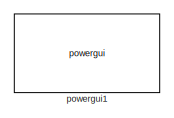
[diagram: root canvas - part 1/4, top left region]
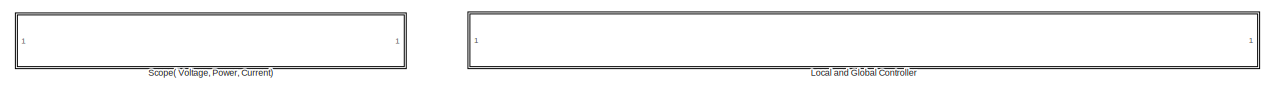
[diagram: root canvas - part 2/4, top center region]
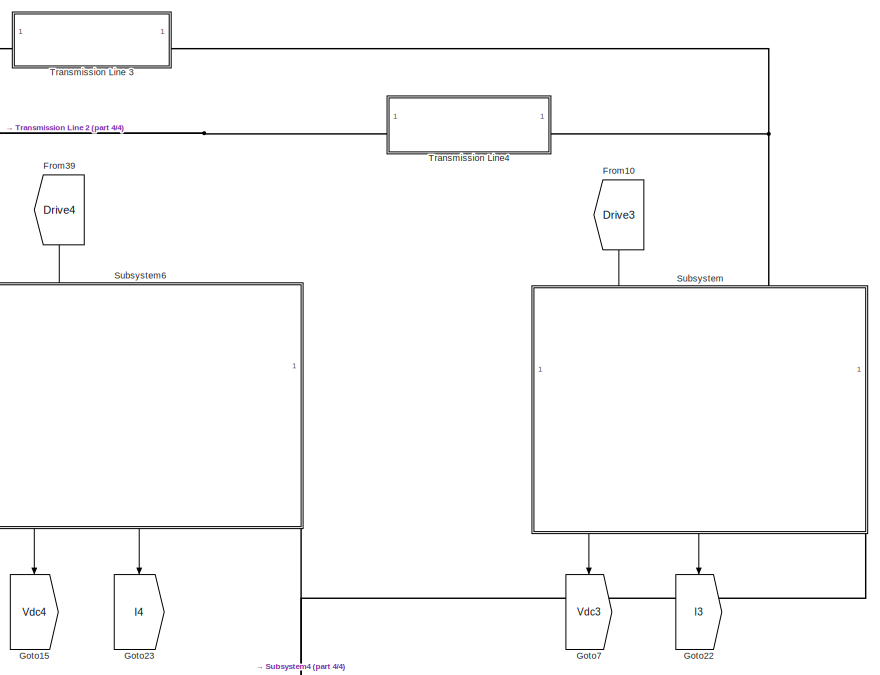
[diagram: root canvas - part 3/4, middle right region]
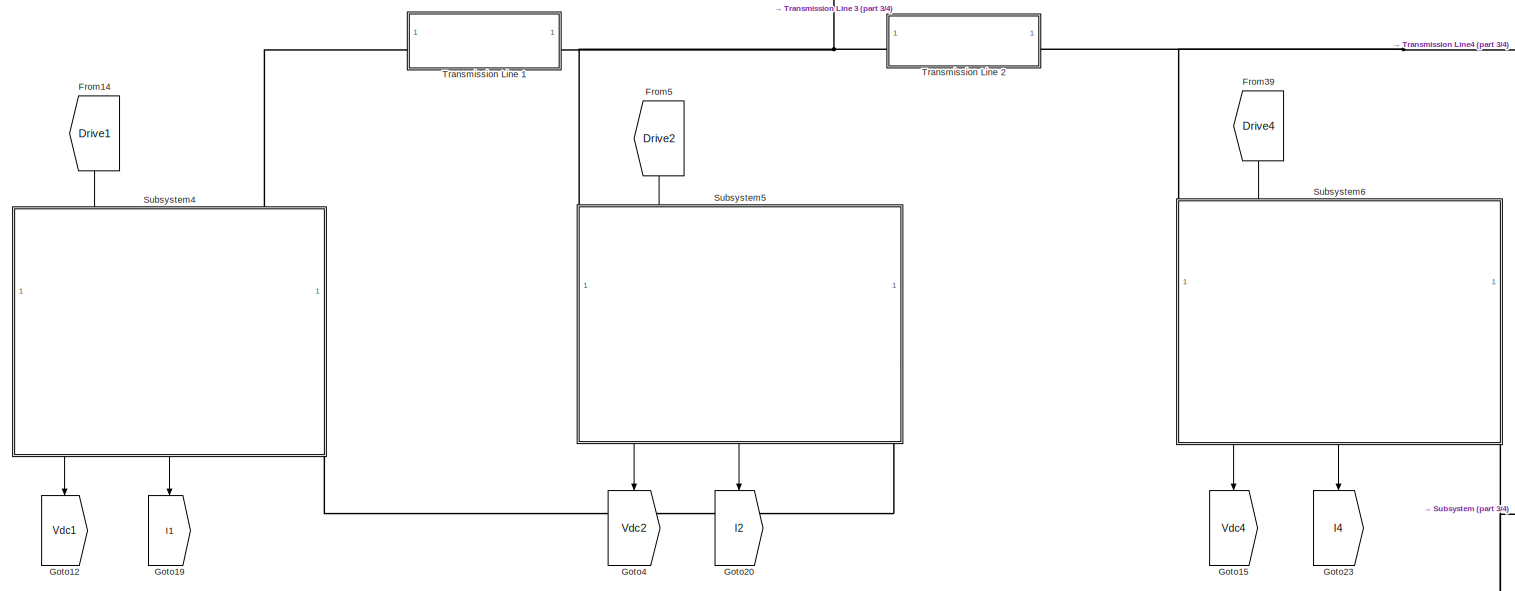
[diagram: root canvas - part 4/4, full width, middle band]
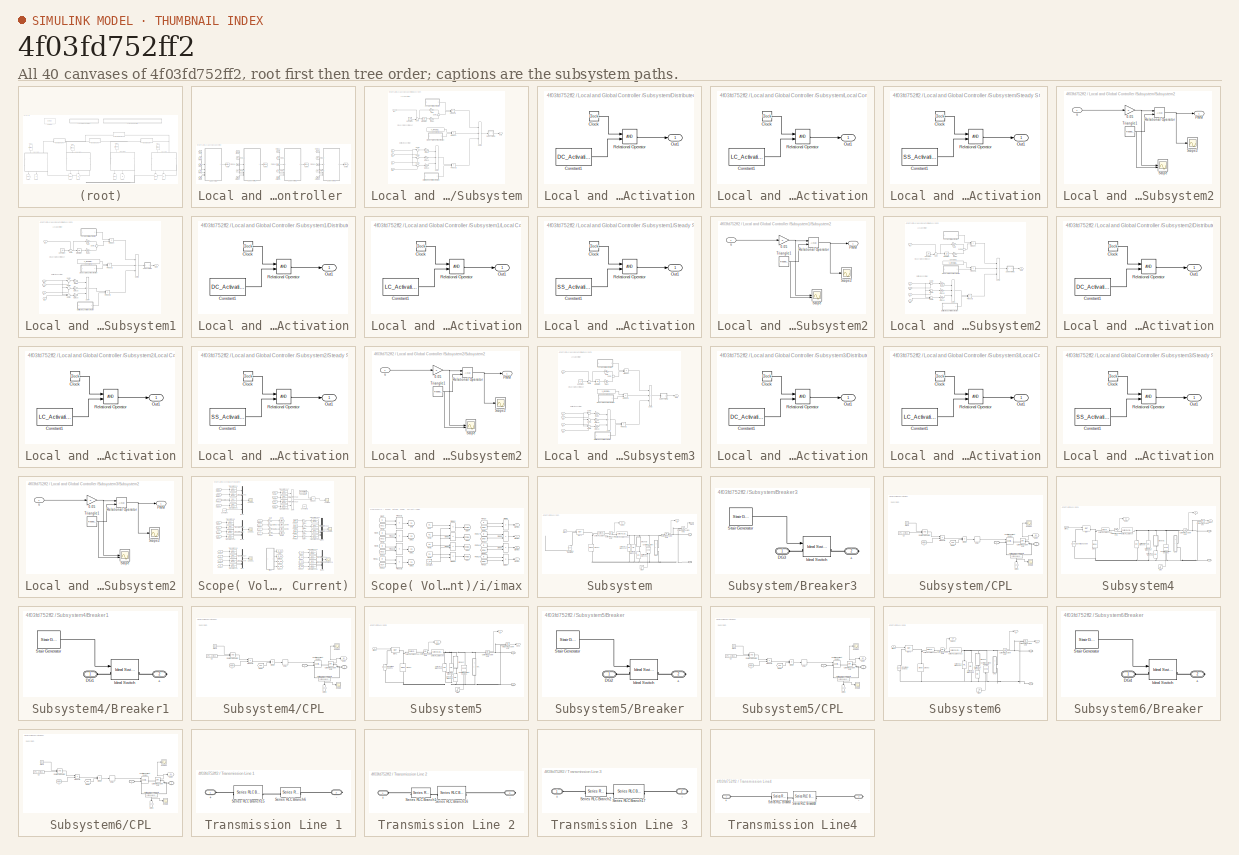
[diagram: thumbnail index - all 40 canvases of the model, root first then tree order]
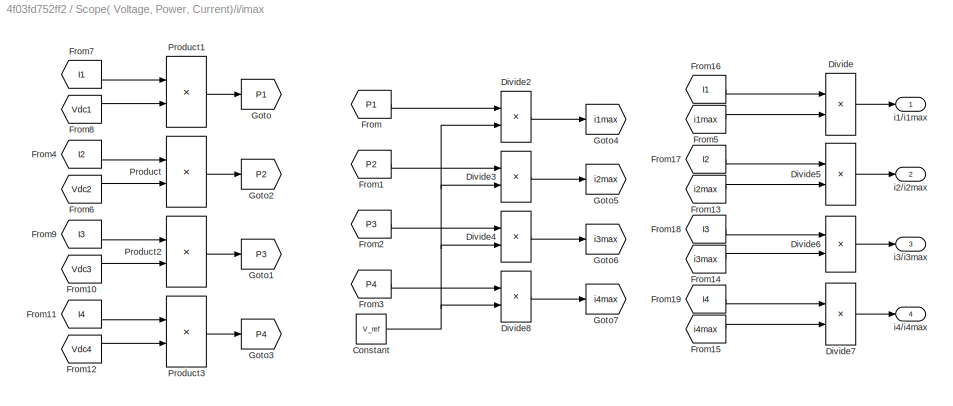
MODEL slx_4f03fd752ff2
KIND model
CONFIG AbsTol = auto
CONFIG EnableMultiTasking = off
CONFIG FixedStep = auto
CONFIG MaxStep = auto
CONFIG MinStep = auto
CONFIG RelTol = 1e-3
CONFIG SampleTimeConstraint = Unconstrained
CONFIG SolverName = VariableStepAuto
CONFIG StartTime = 0.0
CONFIG StopTime = 10
BLOCK [From] From10
  GotoTag = Drive3
  NameLocation = left
  TagVisibility = global
BLOCK [From] From14
  GotoTag = Drive1
  NameLocation = left
  TagVisibility = global
BLOCK [From] From39
  GotoTag = Drive4
  NameLocation = left
  TagVisibility = global
BLOCK [From] From5
  GotoTag = Drive2
  NameLocation = left
  TagVisibility = global
BLOCK [Goto] Goto12
  GotoTag = Vdc1
  NameLocation = left
  TagVisibility = global
BLOCK [Goto] Goto15
  GotoTag = Vdc4
  NameLocation = left
  TagVisibility = global
BLOCK [Goto] Goto19
  GotoTag = I1
  NameLocation = left
  TagVisibility = global
BLOCK [Goto] Goto20
  GotoTag = I2
  NameLocation = left
  TagVisibility = global
BLOCK [Goto] Goto22
  GotoTag = I3
  NameLocation = left
  TagVisibility = global
BLOCK [Goto] Goto23
  GotoTag = I4
  NameLocation = left
  TagVisibility = global
BLOCK [Goto] Goto4
  GotoTag = Vdc2
  NameLocation = left
  TagVisibility = global
BLOCK [Goto] Goto7
  GotoTag = Vdc3
  NameLocation = left
  TagVisibility = global
BLOCK [SubSystem] Local and Global Controller 
BLOCK [From] Local and Global Controller /From
  GotoTag = Vdc1
  TagVisibility = global
BLOCK [From] Local and Global Controller /From1
  GotoTag = I_tilde1
  TagVisibility = global
BLOCK [From] Local and Global Controller /From11
  GotoTag = I_tilde2
  TagVisibility = global
BLOCK [From] Local and Global Controller /From19
  GotoTag = I_tilde1
  TagVisibility = global
BLOCK [From] Local and Global Controller /From20
  GotoTag = I_tilde3
  TagVisibility = global
BLOCK [From] Local and Global Controller /From21
  GotoTag = I_tilde4
  TagVisibility = global
BLOCK [From] Local and Global Controller /From22
  GotoTag = I_tilde3
  TagVisibility = global
BLOCK [From] Local and Global Controller /From26
  GotoTag = I_tilde1
  TagVisibility = global
BLOCK [From] Local and Global Controller /From27
  GotoTag = I_tilde2
  TagVisibility = global
BLOCK [From] Local and Global Controller /From28
  GotoTag = I_tilde4
  TagVisibility = global
BLOCK [From] Local and Global Controller /From36
  GotoTag = Vdc3
  TagVisibility = global
BLOCK [From] Local and Global Controller /From37
  GotoTag = I_tilde4
  TagVisibility = global
BLOCK [From] Local and Global Controller /From42
  GotoTag = I_tilde1
  TagVisibility = global
BLOCK [From] Local and Global Controller /From43
  GotoTag = I_tilde2
  TagVisibility = global
BLOCK [From] Local and Global Controller /From44
  GotoTag = I_tilde3
  TagVisibility = global
BLOCK [From] Local and Global Controller /From45
  GotoTag = Vdc4
  TagVisibility = global
BLOCK [From] Local and Global Controller /From6
  GotoTag = I_tilde2
  TagVisibility = global
BLOCK [From] Local and Global Controller /From7
  GotoTag = I_tilde3
  TagVisibility = global
BLOCK [From] Local and Global Controller /From8
  GotoTag = I_tilde4
  TagVisibility = global
BLOCK [From] Local and Global Controller /From9
  GotoTag = Vdc2
  TagVisibility = global
BLOCK [Goto] Local and Global Controller /Goto
  GotoTag = Drive1
  TagVisibility = global
BLOCK [Goto] Local and Global Controller /Goto3
  GotoTag = Drive2
  TagVisibility = global
BLOCK [Goto] Local and Global Controller /Goto6
  GotoTag = Drive3
  TagVisibility = global
BLOCK [Goto] Local and Global Controller /Goto8
  GotoTag = Drive4
  TagVisibility = global
BLOCK [SubSystem] Local and Global Controller /Subsystem
BLOCK [Constant] Local and Global Controller /Subsystem/Constant
  Value = V_ref
BLOCK [Constant] Local and Global Controller /Subsystem/Constant1
  Value = V_ref+DG{1}.R*DG{1}.Pn*Is
BLOCK [SubSystem] Local and Global Controller /Subsystem/Distributed Controller Activation
BLOCK [Clock] Local and Global Controller /Subsystem/Distributed Controller Activation/Clock
BLOCK [Constant] Local and Global Controller /Subsystem/Distributed Controller Activation/Constant1
  Value = DC_Activation
BLOCK [Outport] Local and Global Controller /Subsystem/Distributed Controller Activation/Out1
  VectorParamsAs1DForOutWhenUnconnected = off
BLOCK [RelationalOperator] Local and Global Controller /Subsystem/Distributed Controller Activation/Relational Operator
  InputSameDT = off
  OutDataTypeStr = boolean
  RndMeth = Simplest
BLOCK [Gain] Local and Global Controller /Subsystem/Gain
  Gain = DG{1}.K0(1)
BLOCK [Gain] Local and Global Controller /Subsystem/Gain15
  Gain = K{1,3}(2,2)
BLOCK [Gain] Local and Global Controller /Subsystem/Gain16
  Gain = K{1,4}(2,2)
BLOCK [Gain] Local and Global Controller /Subsystem/Gain2
  Gain = DG{1}.K0(3)
BLOCK [Gain] Local and Global Controller /Subsystem/Gain8
  Gain = K{1,2}(2,2)
BLOCK [Inport] Local and Global Controller /Subsystem/In1
BLOCK [Inport] Local and Global Controller /Subsystem/In2
  Port = 2
BLOCK [Inport] Local and Global Controller /Subsystem/In6
  Port = 3
BLOCK [Inport] Local and Global Controller /Subsystem/In7
  Port = 4
BLOCK [Inport] Local and Global Controller /Subsystem/In8
  Port = 5
BLOCK [Integrator] Local and Global Controller /Subsystem/Integrator
BLOCK [SubSystem] Local and Global Controller /Subsystem/Local Controller Activation
BLOCK [Clock] Local and Global Controller /Subsystem/Local Controller Activation/Clock
BLOCK [Constant] Local and Global Controller /Subsystem/Local Controller Activation/Constant1
  Value = LC_Activation
BLOCK [Outport] Local and Global Controller /Subsystem/Local Controller Activation/Out1
  VectorParamsAs1DForOutWhenUnconnected = off
BLOCK [RelationalOperator] Local and Global Controller /Subsystem/Local Controller Activation/Relational Operator
  InputSameDT = off
  OutDataTypeStr = boolean
  RndMeth = Simplest
BLOCK [Outport] Local and Global Controller /Subsystem/Out1
BLOCK [Product] Local and Global Controller /Subsystem/Product
BLOCK [Product] Local and Global Controller /Subsystem/Product1
BLOCK [Product] Local and Global Controller /Subsystem/Product2
BLOCK [SubSystem] Local and Global Controller /Subsystem/Steady State Control Activation
BLOCK [Clock] Local and Global Controller /Subsystem/Steady State Control Activation/Clock
BLOCK [Constant] Local and Global Controller /Subsystem/Steady State Control Activation/Constant1
  Value = SS_Activation
BLOCK [Outport] Local and Global Controller /Subsystem/Steady State Control Activation/Out1
  VectorParamsAs1DForOutWhenUnconnected = off
BLOCK [RelationalOperator] Local and Global Controller /Subsystem/Steady State Control Activation/Relational Operator
  InputSameDT = off
  OutDataTypeStr = boolean
  RndMeth = Simplest
BLOCK [SubSystem] Local and Global Controller /Subsystem/Subsystem2
BLOCK [Gain] Local and Global Controller /Subsystem/Subsystem2/0.05
BLOCK [Outport] Local and Global Controller /Subsystem/Subsystem2/PWM
BLOCK [RelationalOperator] Local and Global Controller /Subsystem/Subsystem2/Relational Operator
  InputSameDT = off
  OutDataTypeStr = boolean
BLOCK [Scope] Local and Global Controller /Subsystem/Subsystem2/Scope
  Floating = off
  NumInputPorts = 2
  ScopeSpecificationString = Simulink.scopes.TimeScopeBlockCfg('CurrentConfiguration', extmgr.ConfigurationSet(extmgr.Configuration('Core','General UI',true),extmgr.Configuration('Core','Source UI',true),extmgr.Configuration('Sources','WiredSimulink',true,'DataLoggingSaveFormat','StructureWithTime','DataLoggingDecimation','1','DataLoggingDecimateData',true),extmgr.Configuration('Visuals','Time Domain',true,'SerializedDisplays...<+2569ch>
BLOCK [Scope] Local and Global Controller /Subsystem/Subsystem2/Scope2
  Floating = off
  NumInputPorts = 1
  ScopeSpecificationString = Simulink.scopes.TimeScopeBlockCfg('CurrentConfiguration', extmgr.ConfigurationSet(extmgr.Configuration('Core','General UI',true),extmgr.Configuration('Core','Source UI',true),extmgr.Configuration('Sources','WiredSimulink',true,'DataLoggingVariableName','ScopeData1','DataLoggingSaveFormat','StructureWithTime','DataLoggingDecimation','1','DataLoggingDecimateData',true),extmgr.Configuration('Visuals'...<+1665ch>  <repeated x4 — deduplicated; at blocks: Scope2>
BLOCK [Reference] Local and Global Controller /Subsystem/Subsystem2/Triangle1  REF=simulink/Sources/Repeating
Sequence
  SourceBlock = simulink/Sources/Repeating\nSequence
  SourceType = Repeating table
BLOCK [Inport] Local and Global Controller /Subsystem/Subsystem2/u
BLOCK [Sum] Local and Global Controller /Subsystem/Sum
  Inputs = +-|
BLOCK [Sum] Local and Global Controller /Subsystem/Sum1
BLOCK [Sum] Local and Global Controller /Subsystem/Sum2
  IconShape = rectangular
  Inputs = +++
BLOCK [Sum] Local and Global Controller /Subsystem/Sum3
  Inputs = |-+
BLOCK [Sum] Local and Global Controller /Subsystem/Sum5
  Inputs = |-+
BLOCK [Sum] Local and Global Controller /Subsystem/Sum6
  Inputs = |-+
BLOCK [Sum] Local and Global Controller /Subsystem/Sum7
  IconShape = rectangular
  Inputs = +++
BLOCK [SubSystem] Local and Global Controller /Subsystem1
BLOCK [Constant] Local and Global Controller /Subsystem1/Constant
  Value = V_ref
BLOCK [Constant] Local and Global Controller /Subsystem1/Constant1
  Value = V_ref+DG{2}.R*DG{2}.Pn*Is
BLOCK [SubSystem] Local and Global Controller /Subsystem1/Distributed Controller Activation
BLOCK [Clock] Local and Global Controller /Subsystem1/Distributed Controller Activation/Clock
BLOCK [Constant] Local and Global Controller /Subsystem1/Distributed Controller Activation/Constant1
  Value = DC_Activation
BLOCK [Outport] Local and Global Controller /Subsystem1/Distributed Controller Activation/Out1
  VectorParamsAs1DForOutWhenUnconnected = off
BLOCK [RelationalOperator] Local and Global Controller /Subsystem1/Distributed Controller Activation/Relational Operator
  InputSameDT = off
  OutDataTypeStr = boolean
  RndMeth = Simplest
BLOCK [Gain] Local and Global Controller /Subsystem1/Gain
  Gain = DG{2}.K0(1)
BLOCK [Gain] Local and Global Controller /Subsystem1/Gain15
  Gain = K{2,3}(2,2)
BLOCK [Gain] Local and Global Controller /Subsystem1/Gain16
  Gain = K{2,4}(2,2)
BLOCK [Gain] Local and Global Controller /Subsystem1/Gain2
  Gain = DG{2}.K0(3)
BLOCK [Gain] Local and Global Controller /Subsystem1/Gain8
  Gain = K{2,1}(2,2)
BLOCK [Inport] Local and Global Controller /Subsystem1/In1
BLOCK [Inport] Local and Global Controller /Subsystem1/In2
  Port = 2
BLOCK [Inport] Local and Global Controller /Subsystem1/In6
  Port = 3
BLOCK [Inport] Local and Global Controller /Subsystem1/In7
  Port = 4
BLOCK [Inport] Local and Global Controller /Subsystem1/In8
  Port = 5
BLOCK [Integrator] Local and Global Controller /Subsystem1/Integrator
BLOCK [SubSystem] Local and Global Controller /Subsystem1/Local Controller Activation
BLOCK [Clock] Local and Global Controller /Subsystem1/Local Controller Activation/Clock
BLOCK [Constant] Local and Global Controller /Subsystem1/Local Controller Activation/Constant1
  Value = LC_Activation
BLOCK [Outport] Local and Global Controller /Subsystem1/Local Controller Activation/Out1
  VectorParamsAs1DForOutWhenUnconnected = off
BLOCK [RelationalOperator] Local and Global Controller /Subsystem1/Local Controller Activation/Relational Operator
  InputSameDT = off
  OutDataTypeStr = boolean
  RndMeth = Simplest
BLOCK [Outport] Local and Global Controller /Subsystem1/Out1
BLOCK [Product] Local and Global Controller /Subsystem1/Product
BLOCK [Product] Local and Global Controller /Subsystem1/Product1
BLOCK [Product] Local and Global Controller /Subsystem1/Product2
BLOCK [SubSystem] Local and Global Controller /Subsystem1/Steady State Control Activation
BLOCK [Clock] Local and Global Controller /Subsystem1/Steady State Control Activation/Clock
BLOCK [Constant] Local and Global Controller /Subsystem1/Steady State Control Activation/Constant1
  Value = SS_Activation
BLOCK [Outport] Local and Global Controller /Subsystem1/Steady State Control Activation/Out1
  VectorParamsAs1DForOutWhenUnconnected = off
BLOCK [RelationalOperator] Local and Global Controller /Subsystem1/Steady State Control Activation/Relational Operator
  InputSameDT = off
  OutDataTypeStr = boolean
  RndMeth = Simplest
BLOCK [SubSystem] Local and Global Controller /Subsystem1/Subsystem2
BLOCK [Gain] Local and Global Controller /Subsystem1/Subsystem2/0.05
BLOCK [Outport] Local and Global Controller /Subsystem1/Subsystem2/PWM
BLOCK [RelationalOperator] Local and Global Controller /Subsystem1/Subsystem2/Relational Operator
  InputSameDT = off
  OutDataTypeStr = boolean
BLOCK [Scope] Local and Global Controller /Subsystem1/Subsystem2/Scope
  Floating = off
  NumInputPorts = 2
  ScopeSpecificationString = Simulink.scopes.TimeScopeBlockCfg('CurrentConfiguration', extmgr.ConfigurationSet(extmgr.Configuration('Core','General UI',true),extmgr.Configuration('Core','Source UI',true),extmgr.Configuration('Sources','WiredSimulink',true,'DataLoggingSaveFormat','StructureWithTime','DataLoggingDecimation','1','DataLoggingDecimateData',true),extmgr.Configuration('Visuals','Time Domain',true,'SerializedDisplays...<+2357ch>  <repeated x3 — deduplicated; at blocks: Scope>
BLOCK [Scope] Local and Global Controller /Subsystem1/Subsystem2/Scope2
  Floating = off
  NumInputPorts = 1
BLOCK [Reference] Local and Global Controller /Subsystem1/Subsystem2/Triangle1  REF=simulink/Sources/Repeating
Sequence
  SourceBlock = simulink/Sources/Repeating\nSequence
  SourceType = Repeating table
BLOCK [Inport] Local and Global Controller /Subsystem1/Subsystem2/u
BLOCK [Sum] Local and Global Controller /Subsystem1/Sum
  Inputs = +-|
BLOCK [Sum] Local and Global Controller /Subsystem1/Sum1
BLOCK [Sum] Local and Global Controller /Subsystem1/Sum2
  IconShape = rectangular
  Inputs = +++
BLOCK [Sum] Local and Global Controller /Subsystem1/Sum3
  Inputs = |-+
BLOCK [Sum] Local and Global Controller /Subsystem1/Sum5
  Inputs = |-+
BLOCK [Sum] Local and Global Controller /Subsystem1/Sum6
  Inputs = |-+
BLOCK [Sum] Local and Global Controller /Subsystem1/Sum7
  IconShape = rectangular
  Inputs = +++
BLOCK [SubSystem] Local and Global Controller /Subsystem2
BLOCK [Constant] Local and Global Controller /Subsystem2/Constant
  Value = V_ref
BLOCK [Constant] Local and Global Controller /Subsystem2/Constant1
  Value = V_ref+DG{3}.R*DG{3}.Pn*Is
BLOCK [SubSystem] Local and Global Controller /Subsystem2/Distributed Controller Activation
BLOCK [Clock] Local and Global Controller /Subsystem2/Distributed Controller Activation/Clock
BLOCK [Constant] Local and Global Controller /Subsystem2/Distributed Controller Activation/Constant1
  Value = DC_Activation
BLOCK [Outport] Local and Global Controller /Subsystem2/Distributed Controller Activation/Out1
  VectorParamsAs1DForOutWhenUnconnected = off
BLOCK [RelationalOperator] Local and Global Controller /Subsystem2/Distributed Controller Activation/Relational Operator
  InputSameDT = off
  OutDataTypeStr = boolean
  RndMeth = Simplest
BLOCK [Gain] Local and Global Controller /Subsystem2/Gain
  Gain = DG{3}.K0(1)
BLOCK [Gain] Local and Global Controller /Subsystem2/Gain15
  Gain = K{3,2}(2,2)
BLOCK [Gain] Local and Global Controller /Subsystem2/Gain16
  Gain = K{3,4}(2,2)
BLOCK [Gain] Local and Global Controller /Subsystem2/Gain2
  Gain = DG{3}.K0(3)
BLOCK [Gain] Local and Global Controller /Subsystem2/Gain8
  Gain = K{3,1}(2,2)
BLOCK [Inport] Local and Global Controller /Subsystem2/In1
BLOCK [Inport] Local and Global Controller /Subsystem2/In2
  Port = 2
BLOCK [Inport] Local and Global Controller /Subsystem2/In6
  Port = 3
BLOCK [Inport] Local and Global Controller /Subsystem2/In7
  Port = 4
BLOCK [Inport] Local and Global Controller /Subsystem2/In8
  Port = 5
BLOCK [Integrator] Local and Global Controller /Subsystem2/Integrator
BLOCK [SubSystem] Local and Global Controller /Subsystem2/Local Controller Activation
BLOCK [Clock] Local and Global Controller /Subsystem2/Local Controller Activation/Clock
BLOCK [Constant] Local and Global Controller /Subsystem2/Local Controller Activation/Constant1
  Value = LC_Activation
BLOCK [Outport] Local and Global Controller /Subsystem2/Local Controller Activation/Out1
  VectorParamsAs1DForOutWhenUnconnected = off
BLOCK [RelationalOperator] Local and Global Controller /Subsystem2/Local Controller Activation/Relational Operator
  InputSameDT = off
  OutDataTypeStr = boolean
  RndMeth = Simplest
BLOCK [Outport] Local and Global Controller /Subsystem2/Out1
BLOCK [Product] Local and Global Controller /Subsystem2/Product
BLOCK [Product] Local and Global Controller /Subsystem2/Product1
BLOCK [Product] Local and Global Controller /Subsystem2/Product2
BLOCK [SubSystem] Local and Global Controller /Subsystem2/Steady State Control Activation
BLOCK [Clock] Local and Global Controller /Subsystem2/Steady State Control Activation/Clock
BLOCK [Constant] Local and Global Controller /Subsystem2/Steady State Control Activation/Constant1
  Value = SS_Activation
BLOCK [Outport] Local and Global Controller /Subsystem2/Steady State Control Activation/Out1
  VectorParamsAs1DForOutWhenUnconnected = off
BLOCK [RelationalOperator] Local and Global Controller /Subsystem2/Steady State Control Activation/Relational Operator
  InputSameDT = off
  OutDataTypeStr = boolean
  RndMeth = Simplest
BLOCK [SubSystem] Local and Global Controller /Subsystem2/Subsystem2
BLOCK [Gain] Local and Global Controller /Subsystem2/Subsystem2/0.05
BLOCK [Outport] Local and Global Controller /Subsystem2/Subsystem2/PWM
BLOCK [RelationalOperator] Local and Global Controller /Subsystem2/Subsystem2/Relational Operator
  InputSameDT = off
  OutDataTypeStr = boolean
BLOCK [Scope] Local and Global Controller /Subsystem2/Subsystem2/Scope
  Floating = off
  NumInputPorts = 2
BLOCK [Scope] Local and Global Controller /Subsystem2/Subsystem2/Scope2
  Floating = off
  NumInputPorts = 1
BLOCK [Reference] Local and Global Controller /Subsystem2/Subsystem2/Triangle1  REF=simulink/Sources/Repeating
Sequence
  SourceBlock = simulink/Sources/Repeating\nSequence
  SourceType = Repeating table
BLOCK [Inport] Local and Global Controller /Subsystem2/Subsystem2/u
BLOCK [Sum] Local and Global Controller /Subsystem2/Sum
  Inputs = +-|
BLOCK [Sum] Local and Global Controller /Subsystem2/Sum1
BLOCK [Sum] Local and Global Controller /Subsystem2/Sum2
  IconShape = rectangular
  Inputs = +++
BLOCK [Sum] Local and Global Controller /Subsystem2/Sum3
  Inputs = |-+
BLOCK [Sum] Local and Global Controller /Subsystem2/Sum4
  Inputs = |-+
BLOCK [Sum] Local and Global Controller /Subsystem2/Sum6
  Inputs = |-+
BLOCK [Sum] Local and Global Controller /Subsystem2/Sum7
  IconShape = rectangular
  Inputs = +++
BLOCK [SubSystem] Local and Global Controller /Subsystem3
BLOCK [Constant] Local and Global Controller /Subsystem3/Constant
  Value = V_ref
BLOCK [Constant] Local and Global Controller /Subsystem3/Constant1
  Value = V_ref+DG{4}.R*DG{4}.Pn*Is
BLOCK [SubSystem] Local and Global Controller /Subsystem3/Distributed Controller Activation
BLOCK [Clock] Local and Global Controller /Subsystem3/Distributed Controller Activation/Clock
BLOCK [Constant] Local and Global Controller /Subsystem3/Distributed Controller Activation/Constant1
  Value = DC_Activation
BLOCK [Outport] Local and Global Controller /Subsystem3/Distributed Controller Activation/Out1
  VectorParamsAs1DForOutWhenUnconnected = off
BLOCK [RelationalOperator] Local and Global Controller /Subsystem3/Distributed Controller Activation/Relational Operator
  InputSameDT = off
  OutDataTypeStr = boolean
  RndMeth = Simplest
BLOCK [Gain] Local and Global Controller /Subsystem3/Gain
  Gain = DG{4}.K0(1)
BLOCK [Gain] Local and Global Controller /Subsystem3/Gain15
  Gain = K{4,2}(2,2)
BLOCK [Gain] Local and Global Controller /Subsystem3/Gain16
  Gain = K{4,3}(2,2)
BLOCK [Gain] Local and Global Controller /Subsystem3/Gain2
  Gain = DG{4}.K0(3)
BLOCK [Gain] Local and Global Controller /Subsystem3/Gain8
  Gain = K{4,1}(2,2)
BLOCK [Inport] Local and Global Controller /Subsystem3/In1
BLOCK [Inport] Local and Global Controller /Subsystem3/In2
  Port = 2
BLOCK [Inport] Local and Global Controller /Subsystem3/In6
  Port = 3
BLOCK [Inport] Local and Global Controller /Subsystem3/In7
  Port = 4
BLOCK [Inport] Local and Global Controller /Subsystem3/In8
  Port = 5
BLOCK [Integrator] Local and Global Controller /Subsystem3/Integrator
BLOCK [SubSystem] Local and Global Controller /Subsystem3/Local Controller Activation
BLOCK [Clock] Local and Global Controller /Subsystem3/Local Controller Activation/Clock
BLOCK [Constant] Local and Global Controller /Subsystem3/Local Controller Activation/Constant1
  Value = LC_Activation
BLOCK [Outport] Local and Global Controller /Subsystem3/Local Controller Activation/Out1
  VectorParamsAs1DForOutWhenUnconnected = off
BLOCK [RelationalOperator] Local and Global Controller /Subsystem3/Local Controller Activation/Relational Operator
  InputSameDT = off
  OutDataTypeStr = boolean
  RndMeth = Simplest
BLOCK [Outport] Local and Global Controller /Subsystem3/Out1
BLOCK [Product] Local and Global Controller /Subsystem3/Product
BLOCK [Product] Local and Global Controller /Subsystem3/Product1
BLOCK [Product] Local and Global Controller /Subsystem3/Product2
BLOCK [SubSystem] Local and Global Controller /Subsystem3/Steady State Control Activation
BLOCK [Clock] Local and Global Controller /Subsystem3/Steady State Control Activation/Clock
BLOCK [Constant] Local and Global Controller /Subsystem3/Steady State Control Activation/Constant1
  Value = SS_Activation
BLOCK [Outport] Local and Global Controller /Subsystem3/Steady State Control Activation/Out1
  VectorParamsAs1DForOutWhenUnconnected = off
BLOCK [RelationalOperator] Local and Global Controller /Subsystem3/Steady State Control Activation/Relational Operator
  InputSameDT = off
  OutDataTypeStr = boolean
  RndMeth = Simplest
BLOCK [SubSystem] Local and Global Controller /Subsystem3/Subsystem2
BLOCK [Gain] Local and Global Controller /Subsystem3/Subsystem2/0.05
BLOCK [Outport] Local and Global Controller /Subsystem3/Subsystem2/PWM
BLOCK [RelationalOperator] Local and Global Controller /Subsystem3/Subsystem2/Relational Operator
  InputSameDT = off
  OutDataTypeStr = boolean
BLOCK [Scope] Local and Global Controller /Subsystem3/Subsystem2/Scope
  Floating = off
  NumInputPorts = 2
BLOCK [Scope] Local and Global Controller /Subsystem3/Subsystem2/Scope2
  Floating = off
  NumInputPorts = 1
BLOCK [Reference] Local and Global Controller /Subsystem3/Subsystem2/Triangle1  REF=simulink/Sources/Repeating
Sequence
  SourceBlock = simulink/Sources/Repeating\nSequence
  SourceType = Repeating table
BLOCK [Inport] Local and Global Controller /Subsystem3/Subsystem2/u
BLOCK [Sum] Local and Global Controller /Subsystem3/Sum
  Inputs = +-|
BLOCK [Sum] Local and Global Controller /Subsystem3/Sum1
BLOCK [Sum] Local and Global Controller /Subsystem3/Sum2
  IconShape = rectangular
  Inputs = +++
BLOCK [Sum] Local and Global Controller /Subsystem3/Sum3
  Inputs = |-+
BLOCK [Sum] Local and Global Controller /Subsystem3/Sum5
  Inputs = |-+
BLOCK [Sum] Local and Global Controller /Subsystem3/Sum6
  Inputs = |-+
BLOCK [Sum] Local and Global Controller /Subsystem3/Sum7
  IconShape = rectangular
  Inputs = +++
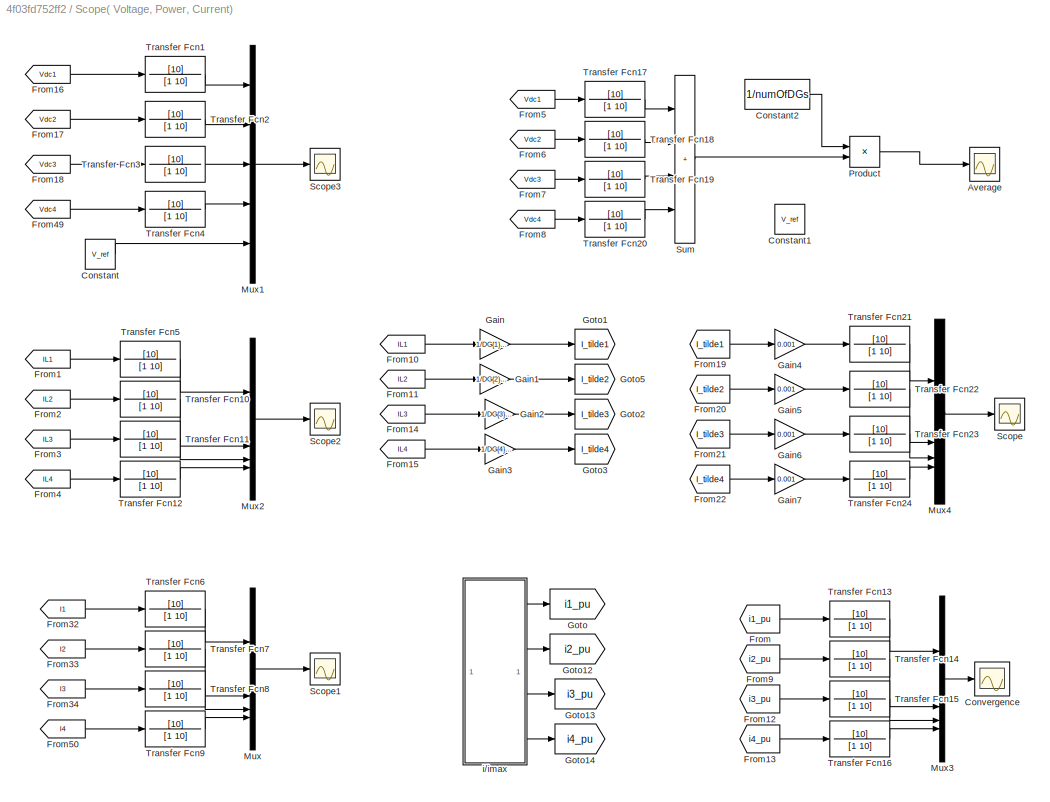
BLOCK [SubSystem] Scope( Voltage, Power, Current)
BLOCK [Scope] Scope( Voltage, Power, Current)/Average
  Floating = off
  NumInputPorts = 1
  ScopeSpecificationString = Simulink.scopes.TimeScopeBlockCfg('CurrentConfiguration', extmgr.ConfigurationSet(extmgr.Configuration('Core','General UI',true),extmgr.Configuration('Core','Source UI',true),extmgr.Configuration('Sources','WiredSimulink',true,'DataLoggingVariableName','Ave','DataLogging',true,'DataLoggingSaveFormat','Array'),extmgr.Configuration('Visuals','Time Domain',true,'SerializedDisplays',{struct('MinYLimRe...<+1574ch>
BLOCK [Constant] Scope( Voltage, Power, Current)/Constant
  Value = V_ref
BLOCK [Constant] Scope( Voltage, Power, Current)/Constant1
  Value = V_ref
BLOCK [Constant] Scope( Voltage, Power, Current)/Constant2
  Value = 1/numOfDGs
BLOCK [Scope] Scope( Voltage, Power, Current)/Convergence
  Floating = off
  NumInputPorts = 1
  ScopeSpecificationString = Simulink.scopes.TimeScopeBlockCfg('CurrentConfiguration', extmgr.ConfigurationSet(extmgr.Configuration('Core','General UI',true),extmgr.Configuration('Core','Source UI',true),extmgr.Configuration('Sources','WiredSimulink',true,'DataLoggingVariableName','Per','DataLoggingSaveFormat','Array','DataLoggingDecimation','1','DataLogging',true),extmgr.Configuration('Visuals','Time Domain',true,'Serialized...<+1656ch>
BLOCK [From] Scope( Voltage, Power, Current)/From
  GotoTag = i1_pu
  TagVisibility = global
BLOCK [From] Scope( Voltage, Power, Current)/From1
  GotoTag = IL1
  TagVisibility = global
BLOCK [From] Scope( Voltage, Power, Current)/From10
  GotoTag = IL1
  TagVisibility = global
BLOCK [From] Scope( Voltage, Power, Current)/From11
  GotoTag = IL2
  TagVisibility = global
BLOCK [From] Scope( Voltage, Power, Current)/From12
  GotoTag = i3_pu
  TagVisibility = global
BLOCK [From] Scope( Voltage, Power, Current)/From13
  GotoTag = i4_pu
  TagVisibility = global
BLOCK [From] Scope( Voltage, Power, Current)/From14
  GotoTag = IL3
  TagVisibility = global
BLOCK [From] Scope( Voltage, Power, Current)/From15
  GotoTag = IL4
  TagVisibility = global
BLOCK [From] Scope( Voltage, Power, Current)/From16
  GotoTag = Vdc1
  TagVisibility = global
BLOCK [From] Scope( Voltage, Power, Current)/From17
  GotoTag = Vdc2
  TagVisibility = global
BLOCK [From] Scope( Voltage, Power, Current)/From18
  GotoTag = Vdc3
  TagVisibility = global
BLOCK [From] Scope( Voltage, Power, Current)/From19
  GotoTag = I_tilde1
  TagVisibility = global
BLOCK [From] Scope( Voltage, Power, Current)/From2
  GotoTag = IL2
  TagVisibility = global
BLOCK [From] Scope( Voltage, Power, Current)/From20
  GotoTag = I_tilde2
  TagVisibility = global
BLOCK [From] Scope( Voltage, Power, Current)/From21
  GotoTag = I_tilde3
  TagVisibility = global
BLOCK [From] Scope( Voltage, Power, Current)/From22
  GotoTag = I_tilde4
  TagVisibility = global
BLOCK [From] Scope( Voltage, Power, Current)/From3
  GotoTag = IL3
  TagVisibility = global
BLOCK [From] Scope( Voltage, Power, Current)/From32
  GotoTag = I1
  TagVisibility = global
BLOCK [From] Scope( Voltage, Power, Current)/From33
  GotoTag = I2
  TagVisibility = global
BLOCK [From] Scope( Voltage, Power, Current)/From34
  GotoTag = I3
  TagVisibility = global
BLOCK [From] Scope( Voltage, Power, Current)/From4
  GotoTag = IL4
  TagVisibility = global
BLOCK [From] Scope( Voltage, Power, Current)/From49
  GotoTag = Vdc4
  TagVisibility = global
BLOCK [From] Scope( Voltage, Power, Current)/From5
  GotoTag = Vdc1
  TagVisibility = global
BLOCK [From] Scope( Voltage, Power, Current)/From50
  GotoTag = I4
  TagVisibility = global
BLOCK [From] Scope( Voltage, Power, Current)/From6
  GotoTag = Vdc2
  TagVisibility = global
BLOCK [From] Scope( Voltage, Power, Current)/From7
  GotoTag = Vdc3
  TagVisibility = global
BLOCK [From] Scope( Voltage, Power, Current)/From8
  GotoTag = Vdc4
  TagVisibility = global
BLOCK [From] Scope( Voltage, Power, Current)/From9
  GotoTag = i2_pu
  TagVisibility = global
BLOCK [Gain] Scope( Voltage, Power, Current)/Gain
  Gain = 1/DG{1}.Pn
BLOCK [Gain] Scope( Voltage, Power, Current)/Gain1
  Gain = 1/DG{2}.Pn
BLOCK [Gain] Scope( Voltage, Power, Current)/Gain2
  Gain = 1/DG{3}.Pn
BLOCK [Gain] Scope( Voltage, Power, Current)/Gain3
  Gain = 1/DG{4}.Pn
BLOCK [Gain] Scope( Voltage, Power, Current)/Gain4
  Gain = 0.001
BLOCK [Gain] Scope( Voltage, Power, Current)/Gain5
  Gain = 0.001
BLOCK [Gain] Scope( Voltage, Power, Current)/Gain6
  Gain = 0.001
BLOCK [Gain] Scope( Voltage, Power, Current)/Gain7
  Gain = 0.001
BLOCK [Goto] Scope( Voltage, Power, Current)/Goto
  GotoTag = i1_pu
  TagVisibility = global
BLOCK [Goto] Scope( Voltage, Power, Current)/Goto1
  GotoTag = I_tilde1
  TagVisibility = global
BLOCK [Goto] Scope( Voltage, Power, Current)/Goto12
  GotoTag = i2_pu
  TagVisibility = global
BLOCK [Goto] Scope( Voltage, Power, Current)/Goto13
  GotoTag = i3_pu
  TagVisibility = global
BLOCK [Goto] Scope( Voltage, Power, Current)/Goto14
  GotoTag = i4_pu
  TagVisibility = global
BLOCK [Goto] Scope( Voltage, Power, Current)/Goto2
  GotoTag = I_tilde3
  TagVisibility = global
BLOCK [Goto] Scope( Voltage, Power, Current)/Goto3
  GotoTag = I_tilde4
  TagVisibility = global
BLOCK [Goto] Scope( Voltage, Power, Current)/Goto5
  GotoTag = I_tilde2
  TagVisibility = global
BLOCK [Mux] Scope( Voltage, Power, Current)/Mux
  DisplayOption = bar
BLOCK [Mux] Scope( Voltage, Power, Current)/Mux1
  DisplayOption = bar
  Inputs = 5
BLOCK [Mux] Scope( Voltage, Power, Current)/Mux2
  DisplayOption = bar
BLOCK [Mux] Scope( Voltage, Power, Current)/Mux3
  DisplayOption = bar
BLOCK [Mux] Scope( Voltage, Power, Current)/Mux4
  DisplayOption = bar
BLOCK [Product] Scope( Voltage, Power, Current)/Product
BLOCK [Scope] Scope( Voltage, Power, Current)/Scope
  Floating = off
  NumInputPorts = 1
  ScopeSpecificationString = Simulink.scopes.TimeScopeBlockCfg('CurrentConfiguration', extmgr.ConfigurationSet(extmgr.Configuration('Core','General UI',true),extmgr.Configuration('Core','Source UI',true),extmgr.Configuration('Sources','WiredSimulink',true,'DataLoggingVariableName','P','DataLogging',true,'DataLoggingSaveFormat','Array'),extmgr.Configuration('Visuals','Time Domain',true,'SerializedDisplays',{struct('MinYLimReal...<+1646ch>
BLOCK [Scope] Scope( Voltage, Power, Current)/Scope1
  Floating = off
  NumInputPorts = 1
  ScopeSpecificationString = Simulink.scopes.TimeScopeBlockCfg('CurrentConfiguration', extmgr.ConfigurationSet(extmgr.Configuration('Core','General UI',true),extmgr.Configuration('Core','Source UI',true),extmgr.Configuration('Sources','WiredSimulink',true,'DataLoggingVariableName','i','DataLogging',true,'DataLoggingSaveFormat','Array'),extmgr.Configuration('Visuals','Time Domain',true,'SerializedDisplays',{struct('MinYLimReal...<+1725ch>
BLOCK [Scope] Scope( Voltage, Power, Current)/Scope2
  Floating = off
  NumInputPorts = 1
  ScopeSpecificationString = Simulink.scopes.TimeScopeBlockCfg('CurrentConfiguration', extmgr.ConfigurationSet(extmgr.Configuration('Core','General UI',true),extmgr.Configuration('Core','Source UI',true),extmgr.Configuration('Sources','WiredSimulink',true,'DataLogging',true,'DataLoggingSaveFormat','Array','DataLoggingVariableName','I'),extmgr.Configuration('Visuals','Time Domain',true,'SerializedDisplays',{struct('MinYLimReal...<+1724ch>
BLOCK [Scope] Scope( Voltage, Power, Current)/Scope3
  Floating = off
  NumInputPorts = 1
  ScopeSpecificationString = Simulink.scopes.TimeScopeBlockCfg('CurrentConfiguration', extmgr.ConfigurationSet(extmgr.Configuration('Core','General UI',true),extmgr.Configuration('Core','Source UI',true),extmgr.Configuration('Sources','WiredSimulink',true,'DataLoggingVariableName','V','DataLogging',true,'DataLoggingSaveFormat','Array'),extmgr.Configuration('Visuals','Time Domain',true,'SerializedDisplays',{struct('MinYLimReal...<+1771ch>
BLOCK [Sum] Scope( Voltage, Power, Current)/Sum
  IconShape = rectangular
  Inputs = ++++
BLOCK [TransferFcn] Scope( Voltage, Power, Current)/Transfer Fcn1
  Denominator = [1 10]
  Numerator = [10]
BLOCK [TransferFcn] Scope( Voltage, Power, Current)/Transfer Fcn10
  Denominator = [1 10]
  Numerator = [10]
BLOCK [TransferFcn] Scope( Voltage, Power, Current)/Transfer Fcn11
  Denominator = [1 10]
  Numerator = [10]
BLOCK [TransferFcn] Scope( Voltage, Power, Current)/Transfer Fcn12
  Denominator = [1 10]
  Numerator = [10]
BLOCK [TransferFcn] Scope( Voltage, Power, Current)/Transfer Fcn13
  Denominator = [1 10]
  Numerator = [10]
BLOCK [TransferFcn] Scope( Voltage, Power, Current)/Transfer Fcn14
  Denominator = [1 10]
  Numerator = [10]
BLOCK [TransferFcn] Scope( Voltage, Power, Current)/Transfer Fcn15
  Denominator = [1 10]
  Numerator = [10]
BLOCK [TransferFcn] Scope( Voltage, Power, Current)/Transfer Fcn16
  Denominator = [1 10]
  Numerator = [10]
BLOCK [TransferFcn] Scope( Voltage, Power, Current)/Transfer Fcn17
  Denominator = [1 10]
  Numerator = [10]
BLOCK [TransferFcn] Scope( Voltage, Power, Current)/Transfer Fcn18
  Denominator = [1 10]
  Numerator = [10]
BLOCK [TransferFcn] Scope( Voltage, Power, Current)/Transfer Fcn19
  Denominator = [1 10]
  Numerator = [10]
BLOCK [TransferFcn] Scope( Voltage, Power, Current)/Transfer Fcn2
  Denominator = [1 10]
  Numerator = [10]
BLOCK [TransferFcn] Scope( Voltage, Power, Current)/Transfer Fcn20
  Denominator = [1 10]
  Numerator = [10]
BLOCK [TransferFcn] Scope( Voltage, Power, Current)/Transfer Fcn21
  Denominator = [1 10]
  Numerator = [10]
BLOCK [TransferFcn] Scope( Voltage, Power, Current)/Transfer Fcn22
  Denominator = [1 10]
  Numerator = [10]
BLOCK [TransferFcn] Scope( Voltage, Power, Current)/Transfer Fcn23
  Denominator = [1 10]
  Numerator = [10]
BLOCK [TransferFcn] Scope( Voltage, Power, Current)/Transfer Fcn24
  Denominator = [1 10]
  Numerator = [10]
BLOCK [TransferFcn] Scope( Voltage, Power, Current)/Transfer Fcn3
  Denominator = [1 10]
  Numerator = [10]
BLOCK [TransferFcn] Scope( Voltage, Power, Current)/Transfer Fcn4
  Denominator = [1 10]
  Numerator = [10]
BLOCK [TransferFcn] Scope( Voltage, Power, Current)/Transfer Fcn5
  Denominator = [1 10]
  Numerator = [10]
BLOCK [TransferFcn] Scope( Voltage, Power, Current)/Transfer Fcn6
  Denominator = [1 10]
  Numerator = [10]
BLOCK [TransferFcn] Scope( Voltage, Power, Current)/Transfer Fcn7
  Denominator = [1 10]
  NameLocation = right
  Numerator = [10]
BLOCK [TransferFcn] Scope( Voltage, Power, Current)/Transfer Fcn8
  Denominator = [1 10]
  Numerator = [10]
BLOCK [TransferFcn] Scope( Voltage, Power, Current)/Transfer Fcn9
  Denominator = [1 10]
  Numerator = [10]
BLOCK [SubSystem] Scope( Voltage, Power, Current)/i//imax
BLOCK [Constant] Scope( Voltage, Power, Current)/i//imax/Constant
  Value = V_ref
BLOCK [Product] Scope( Voltage, Power, Current)/i//imax/Divide
  Inputs = */
BLOCK [Product] Scope( Voltage, Power, Current)/i//imax/Divide2
  Inputs = */
BLOCK [Product] Scope( Voltage, Power, Current)/i//imax/Divide3
  Inputs = */
BLOCK [Product] Scope( Voltage, Power, Current)/i//imax/Divide4
  Inputs = */
BLOCK [Product] Scope( Voltage, Power, Current)/i//imax/Divide5
  Inputs = */
BLOCK [Product] Scope( Voltage, Power, Current)/i//imax/Divide6
  Inputs = */
BLOCK [Product] Scope( Voltage, Power, Current)/i//imax/Divide7
  Inputs = */
BLOCK [Product] Scope( Voltage, Power, Current)/i//imax/Divide8
  Inputs = */
BLOCK [From] Scope( Voltage, Power, Current)/i//imax/From
  GotoTag = P1
BLOCK [From] Scope( Voltage, Power, Current)/i//imax/From1
  GotoTag = P2
BLOCK [From] Scope( Voltage, Power, Current)/i//imax/From10
  GotoTag = Vdc3
  TagVisibility = global
BLOCK [From] Scope( Voltage, Power, Current)/i//imax/From11
  GotoTag = I4
  TagVisibility = global
BLOCK [From] Scope( Voltage, Power, Current)/i//imax/From12
  GotoTag = Vdc4
  TagVisibility = global
BLOCK [From] Scope( Voltage, Power, Current)/i//imax/From13
  GotoTag = i2max
BLOCK [From] Scope( Voltage, Power, Current)/i//imax/From14
  GotoTag = i3max
BLOCK [From] Scope( Voltage, Power, Current)/i//imax/From15
  GotoTag = i4max
BLOCK [From] Scope( Voltage, Power, Current)/i//imax/From16
  GotoTag = I1
  TagVisibility = global
BLOCK [From] Scope( Voltage, Power, Current)/i//imax/From17
  GotoTag = I2
  TagVisibility = global
BLOCK [From] Scope( Voltage, Power, Current)/i//imax/From18
  GotoTag = I3
  TagVisibility = global
BLOCK [From] Scope( Voltage, Power, Current)/i//imax/From19
  GotoTag = I4
  TagVisibility = global
BLOCK [From] Scope( Voltage, Power, Current)/i//imax/From2
  GotoTag = P3
BLOCK [From] Scope( Voltage, Power, Current)/i//imax/From3
  GotoTag = P4
BLOCK [From] Scope( Voltage, Power, Current)/i//imax/From4
  GotoTag = I2
  TagVisibility = global
BLOCK [From] Scope( Voltage, Power, Current)/i//imax/From5
  GotoTag = i1max
BLOCK [From] Scope( Voltage, Power, Current)/i//imax/From6
  GotoTag = Vdc2
  TagVisibility = global
BLOCK [From] Scope( Voltage, Power, Current)/i//imax/From7
  GotoTag = I1
  TagVisibility = global
BLOCK [From] Scope( Voltage, Power, Current)/i//imax/From8
  GotoTag = Vdc1
  TagVisibility = global
BLOCK [From] Scope( Voltage, Power, Current)/i//imax/From9
  GotoTag = I3
  TagVisibility = global
BLOCK [Goto] Scope( Voltage, Power, Current)/i//imax/Goto
  GotoTag = P1
BLOCK [Goto] Scope( Voltage, Power, Current)/i//imax/Goto1
  GotoTag = P3
BLOCK [Goto] Scope( Voltage, Power, Current)/i//imax/Goto2
  GotoTag = P2
BLOCK [Goto] Scope( Voltage, Power, Current)/i//imax/Goto3
  GotoTag = P4
BLOCK [Goto] Scope( Voltage, Power, Current)/i//imax/Goto4
  GotoTag = i1max
BLOCK [Goto] Scope( Voltage, Power, Current)/i//imax/Goto5
  GotoTag = i2max
BLOCK [Goto] Scope( Voltage, Power, Current)/i//imax/Goto6
  GotoTag = i3max
BLOCK [Goto] Scope( Voltage, Power, Current)/i//imax/Goto7
  GotoTag = i4max
BLOCK [Product] Scope( Voltage, Power, Current)/i//imax/Product
BLOCK [Product] Scope( Voltage, Power, Current)/i//imax/Product1
BLOCK [Product] Scope( Voltage, Power, Current)/i//imax/Product2
BLOCK [Product] Scope( Voltage, Power, Current)/i//imax/Product3
BLOCK [Outport] Scope( Voltage, Power, Current)/i//imax/i1//i1max
  VectorParamsAs1DForOutWhenUnconnected = off
BLOCK [Outport] Scope( Voltage, Power, Current)/i//imax/i2//i2max
  Port = 2
  VectorParamsAs1DForOutWhenUnconnected = off
BLOCK [Outport] Scope( Voltage, Power, Current)/i//imax/i3//i3max
  Port = 3
  VectorParamsAs1DForOutWhenUnconnected = off
BLOCK [Outport] Scope( Voltage, Power, Current)/i//imax/i4//i4max
  Port = 4
  VectorParamsAs1DForOutWhenUnconnected = off
BLOCK [SubSystem] Subsystem
  PortSchema = {"entries":[{"content":{"sides":[{"content":{},"type":"ConnectorPlacement.EquallySpacedRectSide","uuid":"08b51d35-5d4f-4d5f-a5b0-37344ba45088"},{"content":{"side":"RIGHT"},"type":"ConnectorPlacement.EquallySpacedRectSide","uuid":"3324977a-6e34-487c-ade0-88e1bff4bebb"},{"content":{"connectorIds":["In1","LConn1"],"side":"TOP"},"type":"ConnectorPlacement.EquallySpacedRectSide","uuid":"e322db0d-0a35-4...<+374ch>
BLOCK [PMIOPort] Subsystem/+
  Side = Left
BLOCK [PMIOPort] Subsystem/-
  Port = 2
  Side = Right
BLOCK [SubSystem] Subsystem/Breaker3
  NameLocation = right
BLOCK [PMIOPort] Subsystem/Breaker3/+
  Port = 2
  Side = Right
BLOCK [PMIOPort] Subsystem/Breaker3/DG3
  Side = Left
BLOCK [Reference] Subsystem/Breaker3/Ideal Switch  REF=spsIdealSwitchLib/Ideal Switch
  SourceBlock = spsIdealSwitchLib/Ideal Switch
  SourceType = Ideal Switch
BLOCK [Reference] Subsystem/Breaker3/Stair Generator  REF=spsStairGeneratorLib/Stair
Generator
  SourceBlock = spsStairGeneratorLib/Stair\nGenerator
  SourceType = Stair Generator
BLOCK [SubSystem] Subsystem/CPL
BLOCK [PMIOPort] Subsystem/CPL/+
  Side = Left
  Tag = PMCPort
BLOCK [PMIOPort] Subsystem/CPL/-
  NameLocation = top
  Port = 2
  Side = Left
  Tag = PMCPort
BLOCK [Constant] Subsystem/CPL/C
  Value = DG{3}.PL
BLOCK [Constant] Subsystem/CPL/C2
  Value = CPL_activation
BLOCK [Clock] Subsystem/CPL/Clock
BLOCK [Reference] Subsystem/CPL/Controlled Current Source  REF=spsControlledCurrentSourceLib/Controlled Current Source
  LibrarySourceBlock = sps_lib/Sources/Controlled Current Source
  SourceBlock = spsControlledCurrentSourceLib/Controlled Current Source
  SourceType = Controlled Current Source
BLOCK [Reference] Subsystem/CPL/Current Measurement1  REF=spsCurrentMeasurementLib/Current Measurement
  LibrarySourceBlock = sps_lib/Sensors and Measurements/Current Measurement
  NameLocation = top
  SourceBlock = spsCurrentMeasurementLib/Current Measurement
  SourceType = Current Measurement
  UserDataPersistent = on
BLOCK [Delay] Subsystem/CPL/Delay
  DelayLength = 1
  InitialCondition = 0
  InputPortMap = u0
BLOCK [Product] Subsystem/CPL/Divide
  Inputs = */
BLOCK [From] Subsystem/CPL/From1
  GotoTag = Vo3
  TagVisibility = global
BLOCK [Goto] Subsystem/CPL/Goto3
  GotoTag = Vo3
  NameLocation = left
  TagVisibility = global
BLOCK [Goto] Subsystem/CPL/Goto4
  GotoTag = io3
  TagVisibility = global
BLOCK [Product] Subsystem/CPL/Product2
BLOCK [RelationalOperator] Subsystem/CPL/Relational Operator
  InputSameDT = off
  OutDataTypeStr = boolean
  RndMeth = Simplest
BLOCK [Scope] Subsystem/CPL/Scope
  Floating = off
  NumInputPorts = 1
  ScopeSpecificationString = Simulink.scopes.TimeScopeBlockCfg('CurrentConfiguration', extmgr.ConfigurationSet(extmgr.Configuration('Core','General UI',true),extmgr.Configuration('Core','Source UI',true),extmgr.Configuration('Sources','WiredSimulink',true,'DataLoggingVariableName','ScopeData2'),extmgr.Configuration('Visuals','Time Domain',true,'SerializedDisplays',{struct('MinYLimReal','-119.17593','MaxYLimReal','158.04892','...<+1398ch>  <repeated x4 — deduplicated; at blocks: Scope>
BLOCK [Scope] Subsystem/CPL/Scope1
  Floating = off
  NumInputPorts = 1
  ScopeSpecificationString = Simulink.scopes.TimeScopeBlockCfg('CurrentConfiguration', extmgr.ConfigurationSet(extmgr.Configuration('Core','General UI',true),extmgr.Configuration('Core','Source UI',true),extmgr.Configuration('Sources','WiredSimulink',true,'DataLoggingVariableName','ScopeData3'),extmgr.Configuration('Visuals','Time Domain',true,'SerializedDisplays',{struct('MinYLimReal','-473275.70086','MaxYLimReal','106020.38...<+1461ch>  <repeated x4 — deduplicated; at blocks: Scope1>
BLOCK [Reference] Subsystem/CPL/Voltage Measurement2  REF=spsVoltageMeasurementLib/Voltage Measurement
  LibrarySourceBlock = sps_lib/Sensors and Measurements/Voltage Measurement
  NameLocation = left
  SourceBlock = spsVoltageMeasurementLib/Voltage Measurement
  SourceType = Voltage Measurement
  UserDataPersistent = on
BLOCK [Reference] Subsystem/Controlled Current Source1  REF=spsControlledCurrentSourceLib/Controlled Current Source
  LibrarySourceBlock = sps_lib/Sources/Controlled Current Source
  SourceBlock = spsControlledCurrentSourceLib/Controlled Current Source
  SourceType = Controlled Current Source
BLOCK [Reference] Subsystem/Current Measurement3  REF=spsCurrentMeasurementLib/Current Measurement
  LibrarySourceBlock = sps_lib/Sensors and Measurements/Current Measurement
  SourceBlock = spsCurrentMeasurementLib/Current Measurement
  SourceType = Current Measurement
  UserDataPersistent = on
BLOCK [Reference] Subsystem/Current Measurement6  REF=spsCurrentMeasurementLib/Current Measurement
  LibrarySourceBlock = sps_lib/Sensors and Measurements/Current Measurement
  SourceBlock = spsCurrentMeasurementLib/Current Measurement
  SourceType = Current Measurement
  UserDataPersistent = on
BLOCK [Reference] Subsystem/DC Voltage Source2  REF=spsDCVoltageSourceLib/DC Voltage Source
  NameLocation = right
  SourceBlock = spsDCVoltageSourceLib/DC Voltage Source
  SourceType = DC Voltage Source
BLOCK [Reference] Subsystem/Diode2  REF=spsDiodeLib/Diode
  NameLocation = right
  SourceBlock = spsDiodeLib/Diode
  SourceType = Diode
BLOCK [Inport] Subsystem/Drive3
BLOCK [Goto] Subsystem/Goto5
  GotoTag = IL3
  TagVisibility = global
BLOCK [Outport] Subsystem/I3
  Port = 2
BLOCK [Reference] Subsystem/IGBT2  REF=spsIGBTLib/IGBT
  SourceBlock = spsIGBTLib/IGBT
  SourceType = IGBT
BLOCK [Reference] Subsystem/Series RLC Branch1  REF=spsSeriesRLCBranchLib/Series RLC Branch
  LibrarySourceBlock = sps_lib/Passives/Series RLC Branch
  NameLocation = left
  SourceBlock = spsSeriesRLCBranchLib/Series RLC Branch
  SourceType = Series RLC Branch
BLOCK [Reference] Subsystem/Series RLC Branch11  REF=spsSeriesRLCBranchLib/Series RLC Branch
  LibrarySourceBlock = sps_lib/Passives/Series RLC Branch
  SourceBlock = spsSeriesRLCBranchLib/Series RLC Branch
  SourceType = Series RLC Branch
BLOCK [Reference] Subsystem/Series RLC Branch12  REF=spsSeriesRLCBranchLib/Series RLC Branch
  LibrarySourceBlock = sps_lib/Passives/Series RLC Branch
  NameLocation = left
  SourceBlock = spsSeriesRLCBranchLib/Series RLC Branch
  SourceType = Series RLC Branch
BLOCK [Reference] Subsystem/Series RLC Branch21  REF=spsSeriesRLCBranchLib/Series RLC Branch
  LibrarySourceBlock = sps_lib/Passives/Series RLC Branch
  NameLocation = top
  SourceBlock = spsSeriesRLCBranchLib/Series RLC Branch
  SourceType = Series RLC Branch
BLOCK [Reference] Subsystem/Series RLC Branch23  REF=spsSeriesRLCBranchLib/Series RLC Branch
  LibrarySourceBlock = sps_lib/Passives/Series RLC Branch
  NameLocation = left
  SourceBlock = spsSeriesRLCBranchLib/Series RLC Branch
  SourceType = Series RLC Branch
BLOCK [Step] Subsystem/Step
  SampleTime = 0
BLOCK [Outport] Subsystem/Vdc3
BLOCK [Reference] Subsystem/Voltage Measurement3  REF=spsVoltageMeasurementLib/Voltage Measurement
  LibrarySourceBlock = sps_lib/Sensors and Measurements/Voltage Measurement
  SourceBlock = spsVoltageMeasurementLib/Voltage Measurement
  SourceType = Voltage Measurement
  UserDataPersistent = on
BLOCK [SubSystem] Subsystem4
  PortSchema = {"entries":[{"content":{"sides":[{"content":{},"type":"ConnectorPlacement.EquallySpacedRectSide","uuid":"764b3ce9-8ebc-4171-9263-333df0dfe6fc"},{"content":{"side":"RIGHT"},"type":"ConnectorPlacement.EquallySpacedRectSide","uuid":"c1e9d8a4-dae3-47b0-883a-539aeb69869c"},{"content":{"connectorIds":["In1","LConn1"],"side":"TOP"},"type":"ConnectorPlacement.EquallySpacedRectSide","uuid":"bcad0197-72c7-4...<+374ch>
BLOCK [PMIOPort] Subsystem4/+
  Side = Left
BLOCK [PMIOPort] Subsystem4/-
  Port = 2
  Side = Right
BLOCK [SubSystem] Subsystem4/Breaker1
  NameLocation = right
BLOCK [PMIOPort] Subsystem4/Breaker1/+
  Port = 2
  Side = Right
BLOCK [PMIOPort] Subsystem4/Breaker1/DG1
  Side = Left
BLOCK [Reference] Subsystem4/Breaker1/Ideal Switch  REF=spsIdealSwitchLib/Ideal Switch
  SourceBlock = spsIdealSwitchLib/Ideal Switch
  SourceType = Ideal Switch
BLOCK [Reference] Subsystem4/Breaker1/Stair Generator  REF=spsStairGeneratorLib/Stair
Generator
  SourceBlock = spsStairGeneratorLib/Stair\nGenerator
  SourceType = Stair Generator
BLOCK [SubSystem] Subsystem4/CPL
BLOCK [PMIOPort] Subsystem4/CPL/+
  Side = Left
  Tag = PMCPort
BLOCK [PMIOPort] Subsystem4/CPL/-
  NameLocation = top
  Port = 2
  Side = Left
  Tag = PMCPort
BLOCK [Constant] Subsystem4/CPL/C
  Value = DG{1}.PL
BLOCK [Constant] Subsystem4/CPL/C2
  Value = CPL_activation
BLOCK [Clock] Subsystem4/CPL/Clock
BLOCK [Reference] Subsystem4/CPL/Controlled Current Source  REF=spsControlledCurrentSourceLib/Controlled Current Source
  LibrarySourceBlock = sps_lib/Sources/Controlled Current Source
  SourceBlock = spsControlledCurrentSourceLib/Controlled Current Source
  SourceType = Controlled Current Source
BLOCK [Reference] Subsystem4/CPL/Current Measurement1  REF=spsCurrentMeasurementLib/Current Measurement
  LibrarySourceBlock = sps_lib/Sensors and Measurements/Current Measurement
  NameLocation = top
  SourceBlock = spsCurrentMeasurementLib/Current Measurement
  SourceType = Current Measurement
  UserDataPersistent = on
BLOCK [Delay] Subsystem4/CPL/Delay
  DelayLength = 1
  InitialCondition = 0
  InputPortMap = u0
BLOCK [Product] Subsystem4/CPL/Divide
  Inputs = */
BLOCK [From] Subsystem4/CPL/From1
  GotoTag = Vo1
  TagVisibility = global
BLOCK [Goto] Subsystem4/CPL/Goto3
  GotoTag = Vo1
  NameLocation = left
  TagVisibility = global
BLOCK [Goto] Subsystem4/CPL/Goto4
  GotoTag = io1
  TagVisibility = global
BLOCK [Product] Subsystem4/CPL/Product2
BLOCK [RelationalOperator] Subsystem4/CPL/Relational Operator
  InputSameDT = off
  OutDataTypeStr = boolean
  RndMeth = Simplest
BLOCK [Scope] Subsystem4/CPL/Scope
  Floating = off
  NumInputPorts = 1
BLOCK [Scope] Subsystem4/CPL/Scope1
  Floating = off
  NumInputPorts = 1
BLOCK [Reference] Subsystem4/CPL/Voltage Measurement2  REF=spsVoltageMeasurementLib/Voltage Measurement
  LibrarySourceBlock = sps_lib/Sensors and Measurements/Voltage Measurement
  NameLocation = left
  SourceBlock = spsVoltageMeasurementLib/Voltage Measurement
  SourceType = Voltage Measurement
  UserDataPersistent = on
BLOCK [Reference] Subsystem4/Controlled Current Source1  REF=spsControlledCurrentSourceLib/Controlled Current Source
  LibrarySourceBlock = sps_lib/Sources/Controlled Current Source
  SourceBlock = spsControlledCurrentSourceLib/Controlled Current Source
  SourceType = Controlled Current Source
BLOCK [Reference] Subsystem4/Current Measurement1  REF=spsCurrentMeasurementLib/Current Measurement
  LibrarySourceBlock = sps_lib/Sensors and Measurements/Current Measurement
  SourceBlock = spsCurrentMeasurementLib/Current Measurement
  SourceType = Current Measurement
  UserDataPersistent = on
BLOCK [Reference] Subsystem4/Current Measurement4  REF=spsCurrentMeasurementLib/Current Measurement
  LibrarySourceBlock = sps_lib/Sensors and Measurements/Current Measurement
  SourceBlock = spsCurrentMeasurementLib/Current Measurement
  SourceType = Current Measurement
  UserDataPersistent = on
BLOCK [Reference] Subsystem4/DC Voltage Source  REF=spsDCVoltageSourceLib/DC Voltage Source
  NameLocation = right
  SourceBlock = spsDCVoltageSourceLib/DC Voltage Source
  SourceType = DC Voltage Source
BLOCK [Reference] Subsystem4/Diode  REF=spsDiodeLib/Diode
  NameLocation = right
  SourceBlock = spsDiodeLib/Diode
  SourceType = Diode
BLOCK [Inport] Subsystem4/Drive1
BLOCK [Goto] Subsystem4/Goto1
  GotoTag = IL1
  TagVisibility = global
BLOCK [Outport] Subsystem4/I1
  Port = 2
BLOCK [Reference] Subsystem4/IGBT  REF=spsIGBTLib/IGBT
  SourceBlock = spsIGBTLib/IGBT
  SourceType = IGBT
BLOCK [Reference] Subsystem4/Series RLC Branch  REF=spsSeriesRLCBranchLib/Series RLC Branch
  LibrarySourceBlock = sps_lib/Passives/Series RLC Branch
  SourceBlock = spsSeriesRLCBranchLib/Series RLC Branch
  SourceType = Series RLC Branch
BLOCK [Reference] Subsystem4/Series RLC Branch1  REF=spsSeriesRLCBranchLib/Series RLC Branch
  LibrarySourceBlock = sps_lib/Passives/Series RLC Branch
  NameLocation = left
  SourceBlock = spsSeriesRLCBranchLib/Series RLC Branch
  SourceType = Series RLC Branch
BLOCK [Reference] Subsystem4/Series RLC Branch19  REF=spsSeriesRLCBranchLib/Series RLC Branch
  LibrarySourceBlock = sps_lib/Passives/Series RLC Branch
  NameLocation = top
  SourceBlock = spsSeriesRLCBranchLib/Series RLC Branch
  SourceType = Series RLC Branch
BLOCK [Reference] Subsystem4/Series RLC Branch4  REF=spsSeriesRLCBranchLib/Series RLC Branch
  LibrarySourceBlock = sps_lib/Passives/Series RLC Branch
  NameLocation = left
  SourceBlock = spsSeriesRLCBranchLib/Series RLC Branch
  SourceType = Series RLC Branch
BLOCK [Reference] Subsystem4/Series RLC Branch5  REF=spsSeriesRLCBranchLib/Series RLC Branch
  LibrarySourceBlock = sps_lib/Passives/Series RLC Branch
  NameLocation = left
  SourceBlock = spsSeriesRLCBranchLib/Series RLC Branch
  SourceType = Series RLC Branch
BLOCK [Step] Subsystem4/Step
  SampleTime = 0
BLOCK [Outport] Subsystem4/Vdc1
BLOCK [Reference] Subsystem4/Voltage Measurement  REF=spsVoltageMeasurementLib/Voltage Measurement
  LibrarySourceBlock = sps_lib/Sensors and Measurements/Voltage Measurement
  SourceBlock = spsVoltageMeasurementLib/Voltage Measurement
  SourceType = Voltage Measurement
  UserDataPersistent = on
BLOCK [SubSystem] Subsystem5
  PortSchema = {"entries":[{"content":{"sides":[{"content":{},"type":"ConnectorPlacement.EquallySpacedRectSide","uuid":"08b51d35-5d4f-4d5f-a5b0-37344ba45088"},{"content":{"side":"RIGHT"},"type":"ConnectorPlacement.EquallySpacedRectSide","uuid":"3324977a-6e34-487c-ade0-88e1bff4bebb"},{"content":{"connectorIds":["In1","LConn1"],"side":"TOP"},"type":"ConnectorPlacement.EquallySpacedRectSide","uuid":"e322db0d-0a35-4...<+374ch>
BLOCK [PMIOPort] Subsystem5/+
  Side = Left
BLOCK [PMIOPort] Subsystem5/-
  Port = 2
  Side = Right
BLOCK [SubSystem] Subsystem5/Breaker
  NameLocation = right
BLOCK [PMIOPort] Subsystem5/Breaker/+
  Port = 2
  Side = Right
BLOCK [PMIOPort] Subsystem5/Breaker/DG2
  Side = Left
BLOCK [Reference] Subsystem5/Breaker/Ideal Switch  REF=spsIdealSwitchLib/Ideal Switch
  SourceBlock = spsIdealSwitchLib/Ideal Switch
  SourceType = Ideal Switch
BLOCK [Reference] Subsystem5/Breaker/Stair Generator  REF=spsStairGeneratorLib/Stair
Generator
  SourceBlock = spsStairGeneratorLib/Stair\nGenerator
  SourceType = Stair Generator
BLOCK [SubSystem] Subsystem5/CPL
BLOCK [PMIOPort] Subsystem5/CPL/+
  Side = Left
  Tag = PMCPort
BLOCK [PMIOPort] Subsystem5/CPL/-
  NameLocation = top
  Port = 2
  Side = Left
  Tag = PMCPort
BLOCK [Constant] Subsystem5/CPL/C
  Value = DG{2}.PL
BLOCK [Constant] Subsystem5/CPL/C2
  Value = CPL_activation
BLOCK [Clock] Subsystem5/CPL/Clock
BLOCK [Reference] Subsystem5/CPL/Controlled Current Source  REF=spsControlledCurrentSourceLib/Controlled Current Source
  LibrarySourceBlock = sps_lib/Sources/Controlled Current Source
  SourceBlock = spsControlledCurrentSourceLib/Controlled Current Source
  SourceType = Controlled Current Source
BLOCK [Reference] Subsystem5/CPL/Current Measurement1  REF=spsCurrentMeasurementLib/Current Measurement
  LibrarySourceBlock = sps_lib/Sensors and Measurements/Current Measurement
  NameLocation = top
  SourceBlock = spsCurrentMeasurementLib/Current Measurement
  SourceType = Current Measurement
  UserDataPersistent = on
BLOCK [Delay] Subsystem5/CPL/Delay
  DelayLength = 1
  InitialCondition = 0
  InputPortMap = u0
BLOCK [Product] Subsystem5/CPL/Divide
  Inputs = */
BLOCK [From] Subsystem5/CPL/From1
  GotoTag = Vo2
  TagVisibility = global
BLOCK [Goto] Subsystem5/CPL/Goto3
  GotoTag = Vo2
  NameLocation = left
  TagVisibility = global
BLOCK [Goto] Subsystem5/CPL/Goto4
  GotoTag = io2
  TagVisibility = global
BLOCK [Product] Subsystem5/CPL/Product2
BLOCK [RelationalOperator] Subsystem5/CPL/Relational Operator
  InputSameDT = off
  OutDataTypeStr = boolean
  RndMeth = Simplest
BLOCK [Scope] Subsystem5/CPL/Scope
  Floating = off
  NumInputPorts = 1
BLOCK [Scope] Subsystem5/CPL/Scope1
  Floating = off
  NumInputPorts = 1
BLOCK [Reference] Subsystem5/CPL/Voltage Measurement2  REF=spsVoltageMeasurementLib/Voltage Measurement
  LibrarySourceBlock = sps_lib/Sensors and Measurements/Voltage Measurement
  NameLocation = left
  SourceBlock = spsVoltageMeasurementLib/Voltage Measurement
  SourceType = Voltage Measurement
  UserDataPersistent = on
BLOCK [Reference] Subsystem5/Controlled Current Source1  REF=spsControlledCurrentSourceLib/Controlled Current Source
  LibrarySourceBlock = sps_lib/Sources/Controlled Current Source
  SourceBlock = spsControlledCurrentSourceLib/Controlled Current Source
  SourceType = Controlled Current Source
BLOCK [Reference] Subsystem5/Current Measurement2  REF=spsCurrentMeasurementLib/Current Measurement
  LibrarySourceBlock = sps_lib/Sensors and Measurements/Current Measurement
  SourceBlock = spsCurrentMeasurementLib/Current Measurement
  SourceType = Current Measurement
  UserDataPersistent = on
BLOCK [Reference] Subsystem5/Current Measurement5  REF=spsCurrentMeasurementLib/Current Measurement
  LibrarySourceBlock = sps_lib/Sensors and Measurements/Current Measurement
  SourceBlock = spsCurrentMeasurementLib/Current Measurement
  SourceType = Current Measurement
  UserDataPersistent = on
BLOCK [Reference] Subsystem5/DC Voltage Source1  REF=spsDCVoltageSourceLib/DC Voltage Source
  NameLocation = right
  SourceBlock = spsDCVoltageSourceLib/DC Voltage Source
  SourceType = DC Voltage Source
BLOCK [Reference] Subsystem5/Diode1  REF=spsDiodeLib/Diode
  NameLocation = right
  SourceBlock = spsDiodeLib/Diode
  SourceType = Diode
BLOCK [Inport] Subsystem5/Drive2
BLOCK [Goto] Subsystem5/Goto2
  GotoTag = IL2
  TagVisibility = global
BLOCK [Outport] Subsystem5/I2
  Port = 2
BLOCK [Reference] Subsystem5/IGBT1  REF=spsIGBTLib/IGBT
  SourceBlock = spsIGBTLib/IGBT
  SourceType = IGBT
BLOCK [Reference] Subsystem5/Series RLC Branch1  REF=spsSeriesRLCBranchLib/Series RLC Branch
  LibrarySourceBlock = sps_lib/Passives/Series RLC Branch
  NameLocation = left
  SourceBlock = spsSeriesRLCBranchLib/Series RLC Branch
  SourceType = Series RLC Branch
BLOCK [Reference] Subsystem5/Series RLC Branch10  REF=spsSeriesRLCBranchLib/Series RLC Branch
  LibrarySourceBlock = sps_lib/Passives/Series RLC Branch
  NameLocation = left
  SourceBlock = spsSeriesRLCBranchLib/Series RLC Branch
  SourceType = Series RLC Branch
BLOCK [Reference] Subsystem5/Series RLC Branch20  REF=spsSeriesRLCBranchLib/Series RLC Branch
  LibrarySourceBlock = sps_lib/Passives/Series RLC Branch
  NameLocation = top
  SourceBlock = spsSeriesRLCBranchLib/Series RLC Branch
  SourceType = Series RLC Branch
BLOCK [Reference] Subsystem5/Series RLC Branch8  REF=spsSeriesRLCBranchLib/Series RLC Branch
  LibrarySourceBlock = sps_lib/Passives/Series RLC Branch
  NameLocation = left
  SourceBlock = spsSeriesRLCBranchLib/Series RLC Branch
  SourceType = Series RLC Branch
BLOCK [Reference] Subsystem5/Series RLC Branch9  REF=spsSeriesRLCBranchLib/Series RLC Branch
  LibrarySourceBlock = sps_lib/Passives/Series RLC Branch
  SourceBlock = spsSeriesRLCBranchLib/Series RLC Branch
  SourceType = Series RLC Branch
BLOCK [Step] Subsystem5/Step
  SampleTime = 0
BLOCK [Outport] Subsystem5/Vdc2
BLOCK [Reference] Subsystem5/Voltage Measurement2  REF=spsVoltageMeasurementLib/Voltage Measurement
  LibrarySourceBlock = sps_lib/Sensors and Measurements/Voltage Measurement
  SourceBlock = spsVoltageMeasurementLib/Voltage Measurement
  SourceType = Voltage Measurement
  UserDataPersistent = on
BLOCK [SubSystem] Subsystem6
  PortSchema = {"entries":[{"content":{"sides":[{"content":{},"type":"ConnectorPlacement.EquallySpacedRectSide","uuid":"764b3ce9-8ebc-4171-9263-333df0dfe6fc"},{"content":{"side":"RIGHT"},"type":"ConnectorPlacement.EquallySpacedRectSide","uuid":"c1e9d8a4-dae3-47b0-883a-539aeb69869c"},{"content":{"connectorIds":["In1","LConn1"],"side":"TOP"},"type":"ConnectorPlacement.EquallySpacedRectSide","uuid":"bcad0197-72c7-4...<+374ch>
BLOCK [PMIOPort] Subsystem6/+
  Side = Left
BLOCK [PMIOPort] Subsystem6/-
  Port = 2
  Side = Right
BLOCK [SubSystem] Subsystem6/Breaker
  NameLocation = right
BLOCK [PMIOPort] Subsystem6/Breaker/+
  Port = 2
  Side = Right
BLOCK [PMIOPort] Subsystem6/Breaker/DG4
  Side = Left
BLOCK [Reference] Subsystem6/Breaker/Ideal Switch  REF=spsIdealSwitchLib/Ideal Switch
  SourceBlock = spsIdealSwitchLib/Ideal Switch
  SourceType = Ideal Switch
BLOCK [Reference] Subsystem6/Breaker/Stair Generator  REF=spsStairGeneratorLib/Stair
Generator
  SourceBlock = spsStairGeneratorLib/Stair\nGenerator
  SourceType = Stair Generator
BLOCK [SubSystem] Subsystem6/CPL
BLOCK [PMIOPort] Subsystem6/CPL/+
  Side = Left
  Tag = PMCPort
BLOCK [PMIOPort] Subsystem6/CPL/-
  NameLocation = top
  Port = 2
  Side = Left
  Tag = PMCPort
BLOCK [Constant] Subsystem6/CPL/C
  Value = DG{4}.PL
BLOCK [Constant] Subsystem6/CPL/C2
  Value = CPL_activation
BLOCK [Clock] Subsystem6/CPL/Clock
BLOCK [Reference] Subsystem6/CPL/Controlled Current Source  REF=spsControlledCurrentSourceLib/Controlled Current Source
  LibrarySourceBlock = sps_lib/Sources/Controlled Current Source
  SourceBlock = spsControlledCurrentSourceLib/Controlled Current Source
  SourceType = Controlled Current Source
BLOCK [Reference] Subsystem6/CPL/Current Measurement1  REF=spsCurrentMeasurementLib/Current Measurement
  LibrarySourceBlock = sps_lib/Sensors and Measurements/Current Measurement
  NameLocation = top
  SourceBlock = spsCurrentMeasurementLib/Current Measurement
  SourceType = Current Measurement
  UserDataPersistent = on
BLOCK [Delay] Subsystem6/CPL/Delay
  DelayLength = 1
  InitialCondition = 0
  InputPortMap = u0
BLOCK [Product] Subsystem6/CPL/Divide
  Inputs = */
BLOCK [From] Subsystem6/CPL/From1
  GotoTag = Vo4
  TagVisibility = global
BLOCK [Goto] Subsystem6/CPL/Goto3
  GotoTag = Vo4
  NameLocation = left
  TagVisibility = global
BLOCK [Goto] Subsystem6/CPL/Goto4
  GotoTag = io4
  TagVisibility = global
BLOCK [Product] Subsystem6/CPL/Product2
BLOCK [RelationalOperator] Subsystem6/CPL/Relational Operator
  InputSameDT = off
  OutDataTypeStr = boolean
  RndMeth = Simplest
BLOCK [Scope] Subsystem6/CPL/Scope
  Floating = off
  NumInputPorts = 1
BLOCK [Scope] Subsystem6/CPL/Scope1
  Floating = off
  NumInputPorts = 1
BLOCK [Reference] Subsystem6/CPL/Voltage Measurement2  REF=spsVoltageMeasurementLib/Voltage Measurement
  LibrarySourceBlock = sps_lib/Sensors and Measurements/Voltage Measurement
  NameLocation = left
  SourceBlock = spsVoltageMeasurementLib/Voltage Measurement
  SourceType = Voltage Measurement
  UserDataPersistent = on
BLOCK [Reference] Subsystem6/Controlled Current Source1  REF=spsControlledCurrentSourceLib/Controlled Current Source
  LibrarySourceBlock = sps_lib/Sources/Controlled Current Source
  SourceBlock = spsControlledCurrentSourceLib/Controlled Current Source
  SourceType = Controlled Current Source
BLOCK [Reference] Subsystem6/Current Measurement7  REF=spsCurrentMeasurementLib/Current Measurement
  LibrarySourceBlock = sps_lib/Sensors and Measurements/Current Measurement
  SourceBlock = spsCurrentMeasurementLib/Current Measurement
  SourceType = Current Measurement
  UserDataPersistent = on
BLOCK [Reference] Subsystem6/Current Measurement8  REF=spsCurrentMeasurementLib/Current Measurement
  LibrarySourceBlock = sps_lib/Sensors and Measurements/Current Measurement
  SourceBlock = spsCurrentMeasurementLib/Current Measurement
  SourceType = Current Measurement
  UserDataPersistent = on
BLOCK [Reference] Subsystem6/DC Voltage Source3  REF=spsDCVoltageSourceLib/DC Voltage Source
  NameLocation = right
  SourceBlock = spsDCVoltageSourceLib/DC Voltage Source
  SourceType = DC Voltage Source
BLOCK [Reference] Subsystem6/Diode3  REF=spsDiodeLib/Diode
  NameLocation = right
  SourceBlock = spsDiodeLib/Diode
  SourceType = Diode
BLOCK [Inport] Subsystem6/Drive4
BLOCK [Goto] Subsystem6/Goto10
  GotoTag = IL4
  TagVisibility = global
BLOCK [Outport] Subsystem6/I4
  Port = 2
BLOCK [Reference] Subsystem6/IGBT3  REF=spsIGBTLib/IGBT
  SourceBlock = spsIGBTLib/IGBT
  SourceType = IGBT
BLOCK [Reference] Subsystem6/Series RLC Branch1  REF=spsSeriesRLCBranchLib/Series RLC Branch
  LibrarySourceBlock = sps_lib/Passives/Series RLC Branch
  NameLocation = left
  SourceBlock = spsSeriesRLCBranchLib/Series RLC Branch
  SourceType = Series RLC Branch
BLOCK [Reference] Subsystem6/Series RLC Branch13  REF=spsSeriesRLCBranchLib/Series RLC Branch
  LibrarySourceBlock = sps_lib/Passives/Series RLC Branch
  SourceBlock = spsSeriesRLCBranchLib/Series RLC Branch
  SourceType = Series RLC Branch
BLOCK [Reference] Subsystem6/Series RLC Branch14  REF=spsSeriesRLCBranchLib/Series RLC Branch
  LibrarySourceBlock = sps_lib/Passives/Series RLC Branch
  NameLocation = left
  SourceBlock = spsSeriesRLCBranchLib/Series RLC Branch
  SourceType = Series RLC Branch
BLOCK [Reference] Subsystem6/Series RLC Branch22  REF=spsSeriesRLCBranchLib/Series RLC Branch
  LibrarySourceBlock = sps_lib/Passives/Series RLC Branch
  NameLocation = top
  SourceBlock = spsSeriesRLCBranchLib/Series RLC Branch
  SourceType = Series RLC Branch
BLOCK [Reference] Subsystem6/Series RLC Branch24  REF=spsSeriesRLCBranchLib/Series RLC Branch
  LibrarySourceBlock = sps_lib/Passives/Series RLC Branch
  NameLocation = left
  SourceBlock = spsSeriesRLCBranchLib/Series RLC Branch
  SourceType = Series RLC Branch
BLOCK [Step] Subsystem6/Step
  SampleTime = 0
BLOCK [Outport] Subsystem6/Vdc4
BLOCK [Reference] Subsystem6/Voltage Measurement4  REF=spsVoltageMeasurementLib/Voltage Measurement
  LibrarySourceBlock = sps_lib/Sensors and Measurements/Voltage Measurement
  SourceBlock = spsVoltageMeasurementLib/Voltage Measurement
  SourceType = Voltage Measurement
  UserDataPersistent = on
BLOCK [SubSystem] Transmission Line 1
BLOCK [PMIOPort] Transmission Line 1/+
  Side = Left
BLOCK [PMIOPort] Transmission Line 1/-
  Port = 2
  Side = Right
BLOCK [Reference] Transmission Line 1/Series RLC Branch15  REF=spsSeriesRLCBranchLib/Series RLC Branch
  LibrarySourceBlock = sps_lib/Passives/Series RLC Branch
  SourceBlock = spsSeriesRLCBranchLib/Series RLC Branch
  SourceType = Series RLC Branch
BLOCK [Reference] Transmission Line 1/Series RLC Branch6  REF=spsSeriesRLCBranchLib/Series RLC Branch
  LibrarySourceBlock = sps_lib/Passives/Series RLC Branch
  NameLocation = top
  SourceBlock = spsSeriesRLCBranchLib/Series RLC Branch
  SourceType = Series RLC Branch
BLOCK [SubSystem] Transmission Line 2
BLOCK [PMIOPort] Transmission Line 2/+
  Side = Left
BLOCK [PMIOPort] Transmission Line 2/-
  Port = 2
  Side = Right
BLOCK [Reference] Transmission Line 2/Series RLC Branch1  REF=spsSeriesRLCBranchLib/Series RLC Branch
  LibrarySourceBlock = sps_lib/Passives/Series RLC Branch
  NameLocation = top
  SourceBlock = spsSeriesRLCBranchLib/Series RLC Branch
  SourceType = Series RLC Branch
BLOCK [Reference] Transmission Line 2/Series RLC Branch16  REF=spsSeriesRLCBranchLib/Series RLC Branch
  LibrarySourceBlock = sps_lib/Passives/Series RLC Branch
  SourceBlock = spsSeriesRLCBranchLib/Series RLC Branch
  SourceType = Series RLC Branch
BLOCK [SubSystem] Transmission Line 3
BLOCK [PMIOPort] Transmission Line 3/+
  Side = Left
BLOCK [PMIOPort] Transmission Line 3/-
  Port = 2
  Side = Right
BLOCK [Reference] Transmission Line 3/Series RLC Branch17  REF=spsSeriesRLCBranchLib/Series RLC Branch
  LibrarySourceBlock = sps_lib/Passives/Series RLC Branch
  SourceBlock = spsSeriesRLCBranchLib/Series RLC Branch
  SourceType = Series RLC Branch
BLOCK [Reference] Transmission Line 3/Series RLC Branch2  REF=spsSeriesRLCBranchLib/Series RLC Branch
  LibrarySourceBlock = sps_lib/Passives/Series RLC Branch
  NameLocation = top
  SourceBlock = spsSeriesRLCBranchLib/Series RLC Branch
  SourceType = Series RLC Branch
BLOCK [SubSystem] Transmission Line4
BLOCK [PMIOPort] Transmission Line4/+
  Side = Left
BLOCK [PMIOPort] Transmission Line4/-
  Port = 2
  Side = Right
BLOCK [Reference] Transmission Line4/Series RLC Branch18  REF=spsSeriesRLCBranchLib/Series RLC Branch
  LibrarySourceBlock = sps_lib/Passives/Series RLC Branch
  SourceBlock = spsSeriesRLCBranchLib/Series RLC Branch
  SourceType = Series RLC Branch
BLOCK [Reference] Transmission Line4/Series RLC Branch3  REF=spsSeriesRLCBranchLib/Series RLC Branch
  LibrarySourceBlock = sps_lib/Passives/Series RLC Branch
  NameLocation = top
  SourceBlock = spsSeriesRLCBranchLib/Series RLC Branch
  SourceType = Series RLC Branch
BLOCK [Reference] powergui1  REF=spspowerguiLib/powergui
  Priority = 1
  SourceBlock = spspowerguiLib/powergui
  SourceType = PSB option menu block
ANNOTATION Local and Global Controller /Subsystem: Distributed Controller
ANNOTATION Local and Global Controller /Subsystem: Local Controller
ANNOTATION Local and Global Controller /Subsystem: Steady State Control input
ANNOTATION Local and Global Controller /Subsystem1: Distributed Controller
ANNOTATION Local and Global Controller /Subsystem1: Local Controller
ANNOTATION Local and Global Controller /Subsystem1: Steady State Control Input
ANNOTATION Local and Global Controller /Subsystem2: Distributed Controller
ANNOTATION Local and Global Controller /Subsystem2: Local Controller
ANNOTATION Local and Global Controller /Subsystem2: Steady State Control Input
ANNOTATION Local and Global Controller /Subsystem3: Distributed Controller
ANNOTATION Local and Global Controller /Subsystem3: Local Controller
ANNOTATION Local and Global Controller /Subsystem3: Steady State Control Input
ANNOTATION Subsystem/CPL: Subsystem
ANNOTATION Subsystem4/CPL: Subsystem
ANNOTATION Subsystem5/CPL: Subsystem
ANNOTATION Subsystem6/CPL: Subsystem
LINE From10:1 -> Subsystem:1
LINE From14:1 -> Subsystem4:1
LINE From39:1 -> Subsystem6:1
LINE From5:1 -> Subsystem5:1
LINE Local and Global Controller /From11:1 -> Local and Global Controller /Subsystem1:2
LINE Local and Global Controller /From19:1 -> Local and Global Controller /Subsystem1:3
LINE Local and Global Controller /From1:1 -> Local and Global Controller /Subsystem:2
LINE Local and Global Controller /From20:1 -> Local and Global Controller /Subsystem1:4
LINE Local and Global Controller /From21:1 -> Local and Global Controller /Subsystem1:5
LINE Local and Global Controller /From22:1 -> Local and Global Controller /Subsystem2:2
LINE Local and Global Controller /From26:1 -> Local and Global Controller /Subsystem2:3
LINE Local and Global Controller /From27:1 -> Local and Global Controller /Subsystem2:4
LINE Local and Global Controller /From28:1 -> Local and Global Controller /Subsystem2:5
LINE Local and Global Controller /From36:1 -> Local and Global Controller /Subsystem2:1
LINE Local and Global Controller /From37:1 -> Local and Global Controller /Subsystem3:2
LINE Local and Global Controller /From42:1 -> Local and Global Controller /Subsystem3:3
LINE Local and Global Controller /From43:1 -> Local and Global Controller /Subsystem3:4
LINE Local and Global Controller /From44:1 -> Local and Global Controller /Subsystem3:5
LINE Local and Global Controller /From45:1 -> Local and Global Controller /Subsystem3:1
LINE Local and Global Controller /From6:1 -> Local and Global Controller /Subsystem:3
LINE Local and Global Controller /From7:1 -> Local and Global Controller /Subsystem:4
LINE Local and Global Controller /From8:1 -> Local and Global Controller /Subsystem:5
LINE Local and Global Controller /From9:1 -> Local and Global Controller /Subsystem1:1
LINE Local and Global Controller /From:1 -> Local and Global Controller /Subsystem:1
LINE Local and Global Controller /Subsystem/Constant1:1 -> Local and Global Controller /Subsystem/Product:1
LINE Local and Global Controller /Subsystem/Constant:1 -> Local and Global Controller /Subsystem/Sum:2
LINE Local and Global Controller /Subsystem/Distributed Controller Activation/Clock:1 -> Local and Global Controller /Subsystem/Distributed Controller Activation/Relational Operator:1
LINE Local and Global Controller /Subsystem/Distributed Controller Activation/Constant1:1 -> Local and Global Controller /Subsystem/Distributed Controller Activation/Relational Operator:2
LINE Local and Global Controller /Subsystem/Distributed Controller Activation/Relational Operator:1 -> Local and Global Controller /Subsystem/Distributed Controller Activation/Out1:1
LINE Local and Global Controller /Subsystem/Distributed Controller Activation:1 -> Local and Global Controller /Subsystem/Product2:2
LINE Local and Global Controller /Subsystem/Gain15:1 -> Local and Global Controller /Subsystem/Sum7:2
LINE Local and Global Controller /Subsystem/Gain16:1 -> Local and Global Controller /Subsystem/Sum7:3
LINE Local and Global Controller /Subsystem/Gain2:1 -> Local and Global Controller /Subsystem/Sum1:2
LINE Local and Global Controller /Subsystem/Gain8:1 -> Local and Global Controller /Subsystem/Sum7:1
LINE Local and Global Controller /Subsystem/Gain:1 -> Local and Global Controller /Subsystem/Sum1:1
LINE Local and Global Controller /Subsystem/In1:1 -> Local and Global Controller /Subsystem/Sum:1
NET Local and Global Controller /Subsystem/In2:1 -> Local and Global Controller /Subsystem/Sum3:1, Local and Global Controller /Subsystem/Sum5:1, Local and Global Controller /Subsystem/Sum6:1
LINE Local and Global Controller /Subsystem/In6:1 -> Local and Global Controller /Subsystem/Sum3:2
LINE Local and Global Controller /Subsystem/In7:1 -> Local and Global Controller /Subsystem/Sum5:2
LINE Local and Global Controller /Subsystem/In8:1 -> Local and Global Controller /Subsystem/Sum6:2
LINE Local and Global Controller /Subsystem/Integrator:1 -> Local and Global Controller /Subsystem/Gain2:1
LINE Local and Global Controller /Subsystem/Local Controller Activation/Clock:1 -> Local and Global Controller /Subsystem/Local Controller Activation/Relational Operator:1
LINE Local and Global Controller /Subsystem/Local Controller Activation/Constant1:1 -> Local and Global Controller /Subsystem/Local Controller Activation/Relational Operator:2
LINE Local and Global Controller /Subsystem/Local Controller Activation/Relational Operator:1 -> Local and Global Controller /Subsystem/Local Controller Activation/Out1:1
LINE Local and Global Controller /Subsystem/Local Controller Activation:1 -> Local and Global Controller /Subsystem/Product1:1
LINE Local and Global Controller /Subsystem/Product1:1 -> Local and Global Controller /Subsystem/Sum2:1
LINE Local and Global Controller /Subsystem/Product2:1 -> Local and Global Controller /Subsystem/Sum2:3
LINE Local and Global Controller /Subsystem/Product:1 -> Local and Global Controller /Subsystem/Sum2:2
LINE Local and Global Controller /Subsystem/Steady State Control Activation/Clock:1 -> Local and Global Controller /Subsystem/Steady State Control Activation/Relational Operator:1
LINE Local and Global Controller /Subsystem/Steady State Control Activation/Constant1:1 -> Local and Global Controller /Subsystem/Steady State Control Activation/Relational Operator:2
LINE Local and Global Controller /Subsystem/Steady State Control Activation/Relational Operator:1 -> Local and Global Controller /Subsystem/Steady State Control Activation/Out1:1
LINE Local and Global Controller /Subsystem/Steady State Control Activation:1 -> Local and Global Controller /Subsystem/Product:2
NET Local and Global Controller /Subsystem/Subsystem2/0.05:1 -> Local and Global Controller /Subsystem/Subsystem2/Relational Operator:1, Local and Global Controller /Subsystem/Subsystem2/Scope:1
NET Local and Global Controller /Subsystem/Subsystem2/Relational Operator:1 -> Local and Global Controller /Subsystem/Subsystem2/PWM:1, Local and Global Controller /Subsystem/Subsystem2/Scope2:1
NET Local and Global Controller /Subsystem/Subsystem2/Triangle1:1 -> Local and Global Controller /Subsystem/Subsystem2/Relational Operator:2, Local and Global Controller /Subsystem/Subsystem2/Scope:2
LINE Local and Global Controller /Subsystem/Subsystem2/u:1 -> Local and Global Controller /Subsystem/Subsystem2/0.05:1
LINE Local and Global Controller /Subsystem/Subsystem2:1 -> Local and Global Controller /Subsystem/Out1:1
LINE Local and Global Controller /Subsystem/Sum1:1 -> Local and Global Controller /Subsystem/Product1:2
LINE Local and Global Controller /Subsystem/Sum2:1 -> Local and Global Controller /Subsystem/Subsystem2:1
LINE Local and Global Controller /Subsystem/Sum3:1 -> Local and Global Controller /Subsystem/Gain8:1
LINE Local and Global Controller /Subsystem/Sum5:1 -> Local and Global Controller /Subsystem/Gain15:1
LINE Local and Global Controller /Subsystem/Sum6:1 -> Local and Global Controller /Subsystem/Gain16:1
LINE Local and Global Controller /Subsystem/Sum7:1 -> Local and Global Controller /Subsystem/Product2:1
NET Local and Global Controller /Subsystem/Sum:1 -> Local and Global Controller /Subsystem/Gain:1, Local and Global Controller /Subsystem/Integrator:1
LINE Local and Global Controller /Subsystem1/Constant1:1 -> Local and Global Controller /Subsystem1/Product1:1
LINE Local and Global Controller /Subsystem1/Constant:1 -> Local and Global Controller /Subsystem1/Sum:2
LINE Local and Global Controller /Subsystem1/Distributed Controller Activation/Clock:1 -> Local and Global Controller /Subsystem1/Distributed Controller Activation/Relational Operator:1
LINE Local and Global Controller /Subsystem1/Distributed Controller Activation/Constant1:1 -> Local and Global Controller /Subsystem1/Distributed Controller Activation/Relational Operator:2
LINE Local and Global Controller /Subsystem1/Distributed Controller Activation/Relational Operator:1 -> Local and Global Controller /Subsystem1/Distributed Controller Activation/Out1:1
LINE Local and Global Controller /Subsystem1/Distributed Controller Activation:1 -> Local and Global Controller /Subsystem1/Product2:2
LINE Local and Global Controller /Subsystem1/Gain15:1 -> Local and Global Controller /Subsystem1/Sum7:2
LINE Local and Global Controller /Subsystem1/Gain16:1 -> Local and Global Controller /Subsystem1/Sum7:3
LINE Local and Global Controller /Subsystem1/Gain2:1 -> Local and Global Controller /Subsystem1/Sum1:2
LINE Local and Global Controller /Subsystem1/Gain8:1 -> Local and Global Controller /Subsystem1/Sum7:1
LINE Local and Global Controller /Subsystem1/Gain:1 -> Local and Global Controller /Subsystem1/Sum1:1
LINE Local and Global Controller /Subsystem1/In1:1 -> Local and Global Controller /Subsystem1/Sum:1
NET Local and Global Controller /Subsystem1/In2:1 -> Local and Global Controller /Subsystem1/Sum3:1, Local and Global Controller /Subsystem1/Sum5:1, Local and Global Controller /Subsystem1/Sum6:1
LINE Local and Global Controller /Subsystem1/In6:1 -> Local and Global Controller /Subsystem1/Sum3:2
LINE Local and Global Controller /Subsystem1/In7:1 -> Local and Global Controller /Subsystem1/Sum5:2
LINE Local and Global Controller /Subsystem1/In8:1 -> Local and Global Controller /Subsystem1/Sum6:2
LINE Local and Global Controller /Subsystem1/Integrator:1 -> Local and Global Controller /Subsystem1/Gain2:1
LINE Local and Global Controller /Subsystem1/Local Controller Activation/Clock:1 -> Local and Global Controller /Subsystem1/Local Controller Activation/Relational Operator:1
LINE Local and Global Controller /Subsystem1/Local Controller Activation/Constant1:1 -> Local and Global Controller /Subsystem1/Local Controller Activation/Relational Operator:2
LINE Local and Global Controller /Subsystem1/Local Controller Activation/Relational Operator:1 -> Local and Global Controller /Subsystem1/Local Controller Activation/Out1:1
LINE Local and Global Controller /Subsystem1/Local Controller Activation:1 -> Local and Global Controller /Subsystem1/Product:1
LINE Local and Global Controller /Subsystem1/Product1:1 -> Local and Global Controller /Subsystem1/Sum2:2
LINE Local and Global Controller /Subsystem1/Product2:1 -> Local and Global Controller /Subsystem1/Sum2:3
LINE Local and Global Controller /Subsystem1/Product:1 -> Local and Global Controller /Subsystem1/Sum2:1
LINE Local and Global Controller /Subsystem1/Steady State Control Activation/Clock:1 -> Local and Global Controller /Subsystem1/Steady State Control Activation/Relational Operator:1
LINE Local and Global Controller /Subsystem1/Steady State Control Activation/Constant1:1 -> Local and Global Controller /Subsystem1/Steady State Control Activation/Relational Operator:2
LINE Local and Global Controller /Subsystem1/Steady State Control Activation/Relational Operator:1 -> Local and Global Controller /Subsystem1/Steady State Control Activation/Out1:1
LINE Local and Global Controller /Subsystem1/Steady State Control Activation:1 -> Local and Global Controller /Subsystem1/Product1:2
NET Local and Global Controller /Subsystem1/Subsystem2/0.05:1 -> Local and Global Controller /Subsystem1/Subsystem2/Relational Operator:1, Local and Global Controller /Subsystem1/Subsystem2/Scope:1
NET Local and Global Controller /Subsystem1/Subsystem2/Relational Operator:1 -> Local and Global Controller /Subsystem1/Subsystem2/PWM:1, Local and Global Controller /Subsystem1/Subsystem2/Scope2:1
NET Local and Global Controller /Subsystem1/Subsystem2/Triangle1:1 -> Local and Global Controller /Subsystem1/Subsystem2/Relational Operator:2, Local and Global Controller /Subsystem1/Subsystem2/Scope:2
LINE Local and Global Controller /Subsystem1/Subsystem2/u:1 -> Local and Global Controller /Subsystem1/Subsystem2/0.05:1
LINE Local and Global Controller /Subsystem1/Subsystem2:1 -> Local and Global Controller /Subsystem1/Out1:1
LINE Local and Global Controller /Subsystem1/Sum1:1 -> Local and Global Controller /Subsystem1/Product:2
LINE Local and Global Controller /Subsystem1/Sum2:1 -> Local and Global Controller /Subsystem1/Subsystem2:1
LINE Local and Global Controller /Subsystem1/Sum3:1 -> Local and Global Controller /Subsystem1/Gain8:1
LINE Local and Global Controller /Subsystem1/Sum5:1 -> Local and Global Controller /Subsystem1/Gain15:1
LINE Local and Global Controller /Subsystem1/Sum6:1 -> Local and Global Controller /Subsystem1/Gain16:1
LINE Local and Global Controller /Subsystem1/Sum7:1 -> Local and Global Controller /Subsystem1/Product2:1
NET Local and Global Controller /Subsystem1/Sum:1 -> Local and Global Controller /Subsystem1/Gain:1, Local and Global Controller /Subsystem1/Integrator:1
LINE Local and Global Controller /Subsystem1:1 -> Local and Global Controller /Goto3:1
LINE Local and Global Controller /Subsystem2/Constant1:1 -> Local and Global Controller /Subsystem2/Product1:1
LINE Local and Global Controller /Subsystem2/Constant:1 -> Local and Global Controller /Subsystem2/Sum:2
LINE Local and Global Controller /Subsystem2/Distributed Controller Activation/Clock:1 -> Local and Global Controller /Subsystem2/Distributed Controller Activation/Relational Operator:1
LINE Local and Global Controller /Subsystem2/Distributed Controller Activation/Constant1:1 -> Local and Global Controller /Subsystem2/Distributed Controller Activation/Relational Operator:2
LINE Local and Global Controller /Subsystem2/Distributed Controller Activation/Relational Operator:1 -> Local and Global Controller /Subsystem2/Distributed Controller Activation/Out1:1
LINE Local and Global Controller /Subsystem2/Distributed Controller Activation:1 -> Local and Global Controller /Subsystem2/Product2:2
LINE Local and Global Controller /Subsystem2/Gain15:1 -> Local and Global Controller /Subsystem2/Sum7:2
LINE Local and Global Controller /Subsystem2/Gain16:1 -> Local and Global Controller /Subsystem2/Sum7:3
LINE Local and Global Controller /Subsystem2/Gain2:1 -> Local and Global Controller /Subsystem2/Sum1:2
LINE Local and Global Controller /Subsystem2/Gain8:1 -> Local and Global Controller /Subsystem2/Sum7:1
LINE Local and Global Controller /Subsystem2/Gain:1 -> Local and Global Controller /Subsystem2/Sum1:1
LINE Local and Global Controller /Subsystem2/In1:1 -> Local and Global Controller /Subsystem2/Sum:1
NET Local and Global Controller /Subsystem2/In2:1 -> Local and Global Controller /Subsystem2/Sum3:1, Local and Global Controller /Subsystem2/Sum4:1, Local and Global Controller /Subsystem2/Sum6:1
LINE Local and Global Controller /Subsystem2/In6:1 -> Local and Global Controller /Subsystem2/Sum3:2
LINE Local and Global Controller /Subsystem2/In7:1 -> Local and Global Controller /Subsystem2/Sum4:2
LINE Local and Global Controller /Subsystem2/In8:1 -> Local and Global Controller /Subsystem2/Sum6:2
LINE Local and Global Controller /Subsystem2/Integrator:1 -> Local and Global Controller /Subsystem2/Gain2:1
LINE Local and Global Controller /Subsystem2/Local Controller Activation/Clock:1 -> Local and Global Controller /Subsystem2/Local Controller Activation/Relational Operator:1
LINE Local and Global Controller /Subsystem2/Local Controller Activation/Constant1:1 -> Local and Global Controller /Subsystem2/Local Controller Activation/Relational Operator:2
LINE Local and Global Controller /Subsystem2/Local Controller Activation/Relational Operator:1 -> Local and Global Controller /Subsystem2/Local Controller Activation/Out1:1
LINE Local and Global Controller /Subsystem2/Local Controller Activation:1 -> Local and Global Controller /Subsystem2/Product:1
LINE Local and Global Controller /Subsystem2/Product1:1 -> Local and Global Controller /Subsystem2/Sum2:2
LINE Local and Global Controller /Subsystem2/Product2:1 -> Local and Global Controller /Subsystem2/Sum2:3
LINE Local and Global Controller /Subsystem2/Product:1 -> Local and Global Controller /Subsystem2/Sum2:1
LINE Local and Global Controller /Subsystem2/Steady State Control Activation/Clock:1 -> Local and Global Controller /Subsystem2/Steady State Control Activation/Relational Operator:1
LINE Local and Global Controller /Subsystem2/Steady State Control Activation/Constant1:1 -> Local and Global Controller /Subsystem2/Steady State Control Activation/Relational Operator:2
LINE Local and Global Controller /Subsystem2/Steady State Control Activation/Relational Operator:1 -> Local and Global Controller /Subsystem2/Steady State Control Activation/Out1:1
LINE Local and Global Controller /Subsystem2/Steady State Control Activation:1 -> Local and Global Controller /Subsystem2/Product1:2
NET Local and Global Controller /Subsystem2/Subsystem2/0.05:1 -> Local and Global Controller /Subsystem2/Subsystem2/Relational Operator:1, Local and Global Controller /Subsystem2/Subsystem2/Scope:1
NET Local and Global Controller /Subsystem2/Subsystem2/Relational Operator:1 -> Local and Global Controller /Subsystem2/Subsystem2/PWM:1, Local and Global Controller /Subsystem2/Subsystem2/Scope2:1
NET Local and Global Controller /Subsystem2/Subsystem2/Triangle1:1 -> Local and Global Controller /Subsystem2/Subsystem2/Relational Operator:2, Local and Global Controller /Subsystem2/Subsystem2/Scope:2
LINE Local and Global Controller /Subsystem2/Subsystem2/u:1 -> Local and Global Controller /Subsystem2/Subsystem2/0.05:1
LINE Local and Global Controller /Subsystem2/Subsystem2:1 -> Local and Global Controller /Subsystem2/Out1:1
LINE Local and Global Controller /Subsystem2/Sum1:1 -> Local and Global Controller /Subsystem2/Product:2
LINE Local and Global Controller /Subsystem2/Sum2:1 -> Local and Global Controller /Subsystem2/Subsystem2:1
LINE Local and Global Controller /Subsystem2/Sum3:1 -> Local and Global Controller /Subsystem2/Gain8:1
LINE Local and Global Controller /Subsystem2/Sum4:1 -> Local and Global Controller /Subsystem2/Gain15:1
LINE Local and Global Controller /Subsystem2/Sum6:1 -> Local and Global Controller /Subsystem2/Gain16:1
LINE Local and Global Controller /Subsystem2/Sum7:1 -> Local and Global Controller /Subsystem2/Product2:1
NET Local and Global Controller /Subsystem2/Sum:1 -> Local and Global Controller /Subsystem2/Gain:1, Local and Global Controller /Subsystem2/Integrator:1
LINE Local and Global Controller /Subsystem2:1 -> Local and Global Controller /Goto6:1
LINE Local and Global Controller /Subsystem3/Constant1:1 -> Local and Global Controller /Subsystem3/Product1:1
LINE Local and Global Controller /Subsystem3/Constant:1 -> Local and Global Controller /Subsystem3/Sum:2
LINE Local and Global Controller /Subsystem3/Distributed Controller Activation/Clock:1 -> Local and Global Controller /Subsystem3/Distributed Controller Activation/Relational Operator:1
LINE Local and Global Controller /Subsystem3/Distributed Controller Activation/Constant1:1 -> Local and Global Controller /Subsystem3/Distributed Controller Activation/Relational Operator:2
LINE Local and Global Controller /Subsystem3/Distributed Controller Activation/Relational Operator:1 -> Local and Global Controller /Subsystem3/Distributed Controller Activation/Out1:1
LINE Local and Global Controller /Subsystem3/Distributed Controller Activation:1 -> Local and Global Controller /Subsystem3/Product2:2
LINE Local and Global Controller /Subsystem3/Gain15:1 -> Local and Global Controller /Subsystem3/Sum7:2
LINE Local and Global Controller /Subsystem3/Gain16:1 -> Local and Global Controller /Subsystem3/Sum7:3
LINE Local and Global Controller /Subsystem3/Gain2:1 -> Local and Global Controller /Subsystem3/Sum1:2
LINE Local and Global Controller /Subsystem3/Gain8:1 -> Local and Global Controller /Subsystem3/Sum7:1
LINE Local and Global Controller /Subsystem3/Gain:1 -> Local and Global Controller /Subsystem3/Sum1:1
LINE Local and Global Controller /Subsystem3/In1:1 -> Local and Global Controller /Subsystem3/Sum:1
NET Local and Global Controller /Subsystem3/In2:1 -> Local and Global Controller /Subsystem3/Sum3:1, Local and Global Controller /Subsystem3/Sum5:1, Local and Global Controller /Subsystem3/Sum6:1
LINE Local and Global Controller /Subsystem3/In6:1 -> Local and Global Controller /Subsystem3/Sum3:2
LINE Local and Global Controller /Subsystem3/In7:1 -> Local and Global Controller /Subsystem3/Sum5:2
LINE Local and Global Controller /Subsystem3/In8:1 -> Local and Global Controller /Subsystem3/Sum6:2
LINE Local and Global Controller /Subsystem3/Integrator:1 -> Local and Global Controller /Subsystem3/Gain2:1
LINE Local and Global Controller /Subsystem3/Local Controller Activation/Clock:1 -> Local and Global Controller /Subsystem3/Local Controller Activation/Relational Operator:1
LINE Local and Global Controller /Subsystem3/Local Controller Activation/Constant1:1 -> Local and Global Controller /Subsystem3/Local Controller Activation/Relational Operator:2
LINE Local and Global Controller /Subsystem3/Local Controller Activation/Relational Operator:1 -> Local and Global Controller /Subsystem3/Local Controller Activation/Out1:1
LINE Local and Global Controller /Subsystem3/Local Controller Activation:1 -> Local and Global Controller /Subsystem3/Product:1
LINE Local and Global Controller /Subsystem3/Product1:1 -> Local and Global Controller /Subsystem3/Sum2:2
LINE Local and Global Controller /Subsystem3/Product2:1 -> Local and Global Controller /Subsystem3/Sum2:3
LINE Local and Global Controller /Subsystem3/Product:1 -> Local and Global Controller /Subsystem3/Sum2:1
LINE Local and Global Controller /Subsystem3/Steady State Control Activation/Clock:1 -> Local and Global Controller /Subsystem3/Steady State Control Activation/Relational Operator:1
LINE Local and Global Controller /Subsystem3/Steady State Control Activation/Constant1:1 -> Local and Global Controller /Subsystem3/Steady State Control Activation/Relational Operator:2
LINE Local and Global Controller /Subsystem3/Steady State Control Activation/Relational Operator:1 -> Local and Global Controller /Subsystem3/Steady State Control Activation/Out1:1
LINE Local and Global Controller /Subsystem3/Steady State Control Activation:1 -> Local and Global Controller /Subsystem3/Product1:2
NET Local and Global Controller /Subsystem3/Subsystem2/0.05:1 -> Local and Global Controller /Subsystem3/Subsystem2/Relational Operator:1, Local and Global Controller /Subsystem3/Subsystem2/Scope:1
NET Local and Global Controller /Subsystem3/Subsystem2/Relational Operator:1 -> Local and Global Controller /Subsystem3/Subsystem2/PWM:1, Local and Global Controller /Subsystem3/Subsystem2/Scope2:1
NET Local and Global Controller /Subsystem3/Subsystem2/Triangle1:1 -> Local and Global Controller /Subsystem3/Subsystem2/Relational Operator:2, Local and Global Controller /Subsystem3/Subsystem2/Scope:2
LINE Local and Global Controller /Subsystem3/Subsystem2/u:1 -> Local and Global Controller /Subsystem3/Subsystem2/0.05:1
LINE Local and Global Controller /Subsystem3/Subsystem2:1 -> Local and Global Controller /Subsystem3/Out1:1
LINE Local and Global Controller /Subsystem3/Sum1:1 -> Local and Global Controller /Subsystem3/Product:2
LINE Local and Global Controller /Subsystem3/Sum2:1 -> Local and Global Controller /Subsystem3/Subsystem2:1
LINE Local and Global Controller /Subsystem3/Sum3:1 -> Local and Global Controller /Subsystem3/Gain8:1
LINE Local and Global Controller /Subsystem3/Sum5:1 -> Local and Global Controller /Subsystem3/Gain15:1
LINE Local and Global Controller /Subsystem3/Sum6:1 -> Local and Global Controller /Subsystem3/Gain16:1
LINE Local and Global Controller /Subsystem3/Sum7:1 -> Local and Global Controller /Subsystem3/Product2:1
NET Local and Global Controller /Subsystem3/Sum:1 -> Local and Global Controller /Subsystem3/Gain:1, Local and Global Controller /Subsystem3/Integrator:1
LINE Local and Global Controller /Subsystem3:1 -> Local and Global Controller /Goto8:1
LINE Local and Global Controller /Subsystem:1 -> Local and Global Controller /Goto:1
LINE Scope( Voltage, Power, Current)/Constant2:1 -> Scope( Voltage, Power, Current)/Product:1
LINE Scope( Voltage, Power, Current)/Constant:1 -> Scope( Voltage, Power, Current)/Mux1:5
LINE Scope( Voltage, Power, Current)/From10:1 -> Scope( Voltage, Power, Current)/Gain:1
LINE Scope( Voltage, Power, Current)/From11:1 -> Scope( Voltage, Power, Current)/Gain1:1
LINE Scope( Voltage, Power, Current)/From12:1 -> Scope( Voltage, Power, Current)/Transfer Fcn15:1
LINE Scope( Voltage, Power, Current)/From13:1 -> Scope( Voltage, Power, Current)/Transfer Fcn16:1
LINE Scope( Voltage, Power, Current)/From14:1 -> Scope( Voltage, Power, Current)/Gain2:1
LINE Scope( Voltage, Power, Current)/From15:1 -> Scope( Voltage, Power, Current)/Gain3:1
LINE Scope( Voltage, Power, Current)/From16:1 -> Scope( Voltage, Power, Current)/Transfer Fcn1:1
LINE Scope( Voltage, Power, Current)/From17:1 -> Scope( Voltage, Power, Current)/Transfer Fcn2:1
LINE Scope( Voltage, Power, Current)/From18:1 -> Scope( Voltage, Power, Current)/Transfer Fcn3:1
LINE Scope( Voltage, Power, Current)/From19:1 -> Scope( Voltage, Power, Current)/Gain4:1
LINE Scope( Voltage, Power, Current)/From1:1 -> Scope( Voltage, Power, Current)/Transfer Fcn5:1
LINE Scope( Voltage, Power, Current)/From20:1 -> Scope( Voltage, Power, Current)/Gain5:1
LINE Scope( Voltage, Power, Current)/From21:1 -> Scope( Voltage, Power, Current)/Gain6:1
LINE Scope( Voltage, Power, Current)/From22:1 -> Scope( Voltage, Power, Current)/Gain7:1
LINE Scope( Voltage, Power, Current)/From2:1 -> Scope( Voltage, Power, Current)/Transfer Fcn10:1
LINE Scope( Voltage, Power, Current)/From32:1 -> Scope( Voltage, Power, Current)/Transfer Fcn6:1
LINE Scope( Voltage, Power, Current)/From33:1 -> Scope( Voltage, Power, Current)/Transfer Fcn7:1
LINE Scope( Voltage, Power, Current)/From34:1 -> Scope( Voltage, Power, Current)/Transfer Fcn8:1
LINE Scope( Voltage, Power, Current)/From3:1 -> Scope( Voltage, Power, Current)/Transfer Fcn11:1
LINE Scope( Voltage, Power, Current)/From49:1 -> Scope( Voltage, Power, Current)/Transfer Fcn4:1
LINE Scope( Voltage, Power, Current)/From4:1 -> Scope( Voltage, Power, Current)/Transfer Fcn12:1
LINE Scope( Voltage, Power, Current)/From50:1 -> Scope( Voltage, Power, Current)/Transfer Fcn9:1
LINE Scope( Voltage, Power, Current)/From5:1 -> Scope( Voltage, Power, Current)/Transfer Fcn17:1
LINE Scope( Voltage, Power, Current)/From6:1 -> Scope( Voltage, Power, Current)/Transfer Fcn18:1
LINE Scope( Voltage, Power, Current)/From7:1 -> Scope( Voltage, Power, Current)/Transfer Fcn19:1
LINE Scope( Voltage, Power, Current)/From8:1 -> Scope( Voltage, Power, Current)/Transfer Fcn20:1
LINE Scope( Voltage, Power, Current)/From9:1 -> Scope( Voltage, Power, Current)/Transfer Fcn14:1
LINE Scope( Voltage, Power, Current)/From:1 -> Scope( Voltage, Power, Current)/Transfer Fcn13:1
LINE Scope( Voltage, Power, Current)/Gain1:1 -> Scope( Voltage, Power, Current)/Goto5:1
LINE Scope( Voltage, Power, Current)/Gain2:1 -> Scope( Voltage, Power, Current)/Goto2:1
LINE Scope( Voltage, Power, Current)/Gain3:1 -> Scope( Voltage, Power, Current)/Goto3:1
LINE Scope( Voltage, Power, Current)/Gain4:1 -> Scope( Voltage, Power, Current)/Transfer Fcn21:1
LINE Scope( Voltage, Power, Current)/Gain5:1 -> Scope( Voltage, Power, Current)/Transfer Fcn22:1
LINE Scope( Voltage, Power, Current)/Gain6:1 -> Scope( Voltage, Power, Current)/Transfer Fcn23:1
LINE Scope( Voltage, Power, Current)/Gain7:1 -> Scope( Voltage, Power, Current)/Transfer Fcn24:1
LINE Scope( Voltage, Power, Current)/Gain:1 -> Scope( Voltage, Power, Current)/Goto1:1
LINE Scope( Voltage, Power, Current)/Mux1:1 -> Scope( Voltage, Power, Current)/Scope3:1
LINE Scope( Voltage, Power, Current)/Mux2:1 -> Scope( Voltage, Power, Current)/Scope2:1
LINE Scope( Voltage, Power, Current)/Mux3:1 -> Scope( Voltage, Power, Current)/Convergence:1
LINE Scope( Voltage, Power, Current)/Mux4:1 -> Scope( Voltage, Power, Current)/Scope:1
LINE Scope( Voltage, Power, Current)/Mux:1 -> Scope( Voltage, Power, Current)/Scope1:1
LINE Scope( Voltage, Power, Current)/Product:1 -> Scope( Voltage, Power, Current)/Average:1
LINE Scope( Voltage, Power, Current)/Sum:1 -> Scope( Voltage, Power, Current)/Product:2
LINE Scope( Voltage, Power, Current)/Transfer Fcn10:1 -> Scope( Voltage, Power, Current)/Mux2:2
LINE Scope( Voltage, Power, Current)/Transfer Fcn11:1 -> Scope( Voltage, Power, Current)/Mux2:3
LINE Scope( Voltage, Power, Current)/Transfer Fcn12:1 -> Scope( Voltage, Power, Current)/Mux2:4
LINE Scope( Voltage, Power, Current)/Transfer Fcn13:1 -> Scope( Voltage, Power, Current)/Mux3:1
LINE Scope( Voltage, Power, Current)/Transfer Fcn14:1 -> Scope( Voltage, Power, Current)/Mux3:2
LINE Scope( Voltage, Power, Current)/Transfer Fcn15:1 -> Scope( Voltage, Power, Current)/Mux3:3
LINE Scope( Voltage, Power, Current)/Transfer Fcn16:1 -> Scope( Voltage, Power, Current)/Mux3:4
LINE Scope( Voltage, Power, Current)/Transfer Fcn17:1 -> Scope( Voltage, Power, Current)/Sum:1
LINE Scope( Voltage, Power, Current)/Transfer Fcn18:1 -> Scope( Voltage, Power, Current)/Sum:2
LINE Scope( Voltage, Power, Current)/Transfer Fcn19:1 -> Scope( Voltage, Power, Current)/Sum:3
LINE Scope( Voltage, Power, Current)/Transfer Fcn1:1 -> Scope( Voltage, Power, Current)/Mux1:1
LINE Scope( Voltage, Power, Current)/Transfer Fcn20:1 -> Scope( Voltage, Power, Current)/Sum:4
LINE Scope( Voltage, Power, Current)/Transfer Fcn21:1 -> Scope( Voltage, Power, Current)/Mux4:1
LINE Scope( Voltage, Power, Current)/Transfer Fcn22:1 -> Scope( Voltage, Power, Current)/Mux4:2
LINE Scope( Voltage, Power, Current)/Transfer Fcn23:1 -> Scope( Voltage, Power, Current)/Mux4:3
LINE Scope( Voltage, Power, Current)/Transfer Fcn24:1 -> Scope( Voltage, Power, Current)/Mux4:4
LINE Scope( Voltage, Power, Current)/Transfer Fcn2:1 -> Scope( Voltage, Power, Current)/Mux1:2
LINE Scope( Voltage, Power, Current)/Transfer Fcn3:1 -> Scope( Voltage, Power, Current)/Mux1:3
LINE Scope( Voltage, Power, Current)/Transfer Fcn4:1 -> Scope( Voltage, Power, Current)/Mux1:4
LINE Scope( Voltage, Power, Current)/Transfer Fcn5:1 -> Scope( Voltage, Power, Current)/Mux2:1
LINE Scope( Voltage, Power, Current)/Transfer Fcn6:1 -> Scope( Voltage, Power, Current)/Mux:1
LINE Scope( Voltage, Power, Current)/Transfer Fcn7:1 -> Scope( Voltage, Power, Current)/Mux:2
LINE Scope( Voltage, Power, Current)/Transfer Fcn8:1 -> Scope( Voltage, Power, Current)/Mux:3
LINE Scope( Voltage, Power, Current)/Transfer Fcn9:1 -> Scope( Voltage, Power, Current)/Mux:4
NET Scope( Voltage, Power, Current)/i//imax/Constant:1 -> Scope( Voltage, Power, Current)/i//imax/Divide2:2, Scope( Voltage, Power, Current)/i//imax/Divide3:2, Scope( Voltage, Power, Current)/i//imax/Divide4:2, Scope( Voltage, Power, Current)/i//imax/Divide8:2
LINE Scope( Voltage, Power, Current)/i//imax/Divide2:1 -> Scope( Voltage, Power, Current)/i//imax/Goto4:1
LINE Scope( Voltage, Power, Current)/i//imax/Divide3:1 -> Scope( Voltage, Power, Current)/i//imax/Goto5:1
LINE Scope( Voltage, Power, Current)/i//imax/Divide4:1 -> Scope( Voltage, Power, Current)/i//imax/Goto6:1
LINE Scope( Voltage, Power, Current)/i//imax/Divide5:1 -> Scope( Voltage, Power, Current)/i//imax/i2//i2max:1
LINE Scope( Voltage, Power, Current)/i//imax/Divide6:1 -> Scope( Voltage, Power, Current)/i//imax/i3//i3max:1
LINE Scope( Voltage, Power, Current)/i//imax/Divide7:1 -> Scope( Voltage, Power, Current)/i//imax/i4//i4max:1
LINE Scope( Voltage, Power, Current)/i//imax/Divide8:1 -> Scope( Voltage, Power, Current)/i//imax/Goto7:1
LINE Scope( Voltage, Power, Current)/i//imax/Divide:1 -> Scope( Voltage, Power, Current)/i//imax/i1//i1max:1
LINE Scope( Voltage, Power, Current)/i//imax/From10:1 -> Scope( Voltage, Power, Current)/i//imax/Product2:2
LINE Scope( Voltage, Power, Current)/i//imax/From11:1 -> Scope( Voltage, Power, Current)/i//imax/Product3:1
LINE Scope( Voltage, Power, Current)/i//imax/From12:1 -> Scope( Voltage, Power, Current)/i//imax/Product3:2
LINE Scope( Voltage, Power, Current)/i//imax/From13:1 -> Scope( Voltage, Power, Current)/i//imax/Divide5:2
LINE Scope( Voltage, Power, Current)/i//imax/From14:1 -> Scope( Voltage, Power, Current)/i//imax/Divide6:2
LINE Scope( Voltage, Power, Current)/i//imax/From15:1 -> Scope( Voltage, Power, Current)/i//imax/Divide7:2
LINE Scope( Voltage, Power, Current)/i//imax/From16:1 -> Scope( Voltage, Power, Current)/i//imax/Divide:1
LINE Scope( Voltage, Power, Current)/i//imax/From17:1 -> Scope( Voltage, Power, Current)/i//imax/Divide5:1
LINE Scope( Voltage, Power, Current)/i//imax/From18:1 -> Scope( Voltage, Power, Current)/i//imax/Divide6:1
LINE Scope( Voltage, Power, Current)/i//imax/From19:1 -> Scope( Voltage, Power, Current)/i//imax/Divide7:1
LINE Scope( Voltage, Power, Current)/i//imax/From1:1 -> Scope( Voltage, Power, Current)/i//imax/Divide3:1
LINE Scope( Voltage, Power, Current)/i//imax/From2:1 -> Scope( Voltage, Power, Current)/i//imax/Divide4:1
LINE Scope( Voltage, Power, Current)/i//imax/From3:1 -> Scope( Voltage, Power, Current)/i//imax/Divide8:1
LINE Scope( Voltage, Power, Current)/i//imax/From4:1 -> Scope( Voltage, Power, Current)/i//imax/Product:1
LINE Scope( Voltage, Power, Current)/i//imax/From5:1 -> Scope( Voltage, Power, Current)/i//imax/Divide:2
LINE Scope( Voltage, Power, Current)/i//imax/From6:1 -> Scope( Voltage, Power, Current)/i//imax/Product:2
LINE Scope( Voltage, Power, Current)/i//imax/From7:1 -> Scope( Voltage, Power, Current)/i//imax/Product1:1
LINE Scope( Voltage, Power, Current)/i//imax/From8:1 -> Scope( Voltage, Power, Current)/i//imax/Product1:2
LINE Scope( Voltage, Power, Current)/i//imax/From9:1 -> Scope( Voltage, Power, Current)/i//imax/Product2:1
LINE Scope( Voltage, Power, Current)/i//imax/From:1 -> Scope( Voltage, Power, Current)/i//imax/Divide2:1
LINE Scope( Voltage, Power, Current)/i//imax/Product1:1 -> Scope( Voltage, Power, Current)/i//imax/Goto:1
LINE Scope( Voltage, Power, Current)/i//imax/Product2:1 -> Scope( Voltage, Power, Current)/i//imax/Goto1:1
LINE Scope( Voltage, Power, Current)/i//imax/Product3:1 -> Scope( Voltage, Power, Current)/i//imax/Goto3:1
LINE Scope( Voltage, Power, Current)/i//imax/Product:1 -> Scope( Voltage, Power, Current)/i//imax/Goto2:1
LINE Scope( Voltage, Power, Current)/i//imax:1 -> Scope( Voltage, Power, Current)/Goto:1
LINE Scope( Voltage, Power, Current)/i//imax:2 -> Scope( Voltage, Power, Current)/Goto12:1
LINE Scope( Voltage, Power, Current)/i//imax:3 -> Scope( Voltage, Power, Current)/Goto13:1
LINE Scope( Voltage, Power, Current)/i//imax:4 -> Scope( Voltage, Power, Current)/Goto14:1
LINE Subsystem/Breaker3/Stair Generator:1 -> Subsystem/Breaker3/Ideal Switch:1
LINE Subsystem/CPL/C2:1 -> Subsystem/CPL/Relational Operator:2
LINE Subsystem/CPL/C:1 -> Subsystem/CPL/Product2:2
LINE Subsystem/CPL/Clock:1 -> Subsystem/CPL/Relational Operator:1
NET Subsystem/CPL/Current Measurement1:1 -> Subsystem/CPL/Goto4:1, Subsystem/CPL/Scope1:1
LINE Subsystem/CPL/Delay:1 -> Subsystem/CPL/Controlled Current Source:1
LINE Subsystem/CPL/Divide:1 -> Subsystem/CPL/Delay:1
LINE Subsystem/CPL/From1:1 -> Subsystem/CPL/Divide:2
LINE Subsystem/CPL/Product2:1 -> Subsystem/CPL/Divide:1
LINE Subsystem/CPL/Relational Operator:1 -> Subsystem/CPL/Product2:1
NET Subsystem/CPL/Voltage Measurement2:1 -> Subsystem/CPL/Goto3:1, Subsystem/CPL/Scope:1
LINE Subsystem/Current Measurement3:1 -> Subsystem/Goto5:1
LINE Subsystem/Current Measurement6:1 -> Subsystem/I3:1
LINE Subsystem/Drive3:1 -> Subsystem/IGBT2:1
LINE Subsystem/Step:1 -> Subsystem/Controlled Current Source1:1
LINE Subsystem/Voltage Measurement3:1 -> Subsystem/Vdc3:1
LINE Subsystem4/Breaker1/Stair Generator:1 -> Subsystem4/Breaker1/Ideal Switch:1
LINE Subsystem4/CPL/C2:1 -> Subsystem4/CPL/Relational Operator:2
LINE Subsystem4/CPL/C:1 -> Subsystem4/CPL/Product2:2
LINE Subsystem4/CPL/Clock:1 -> Subsystem4/CPL/Relational Operator:1
NET Subsystem4/CPL/Current Measurement1:1 -> Subsystem4/CPL/Goto4:1, Subsystem4/CPL/Scope1:1
LINE Subsystem4/CPL/Delay:1 -> Subsystem4/CPL/Controlled Current Source:1
LINE Subsystem4/CPL/Divide:1 -> Subsystem4/CPL/Delay:1
LINE Subsystem4/CPL/From1:1 -> Subsystem4/CPL/Divide:2
LINE Subsystem4/CPL/Product2:1 -> Subsystem4/CPL/Divide:1
LINE Subsystem4/CPL/Relational Operator:1 -> Subsystem4/CPL/Product2:1
NET Subsystem4/CPL/Voltage Measurement2:1 -> Subsystem4/CPL/Goto3:1, Subsystem4/CPL/Scope:1
LINE Subsystem4/Current Measurement1:1 -> Subsystem4/Goto1:1
LINE Subsystem4/Current Measurement4:1 -> Subsystem4/I1:1
LINE Subsystem4/Drive1:1 -> Subsystem4/IGBT:1
LINE Subsystem4/Step:1 -> Subsystem4/Controlled Current Source1:1
LINE Subsystem4/Voltage Measurement:1 -> Subsystem4/Vdc1:1
LINE Subsystem4:1 -> Goto12:1
LINE Subsystem4:2 -> Goto19:1
LINE Subsystem5/Breaker/Stair Generator:1 -> Subsystem5/Breaker/Ideal Switch:1
LINE Subsystem5/CPL/C2:1 -> Subsystem5/CPL/Relational Operator:2
LINE Subsystem5/CPL/C:1 -> Subsystem5/CPL/Product2:2
LINE Subsystem5/CPL/Clock:1 -> Subsystem5/CPL/Relational Operator:1
NET Subsystem5/CPL/Current Measurement1:1 -> Subsystem5/CPL/Goto4:1, Subsystem5/CPL/Scope1:1
LINE Subsystem5/CPL/Delay:1 -> Subsystem5/CPL/Controlled Current Source:1
LINE Subsystem5/CPL/Divide:1 -> Subsystem5/CPL/Delay:1
LINE Subsystem5/CPL/From1:1 -> Subsystem5/CPL/Divide:2
LINE Subsystem5/CPL/Product2:1 -> Subsystem5/CPL/Divide:1
LINE Subsystem5/CPL/Relational Operator:1 -> Subsystem5/CPL/Product2:1
NET Subsystem5/CPL/Voltage Measurement2:1 -> Subsystem5/CPL/Goto3:1, Subsystem5/CPL/Scope:1
LINE Subsystem5/Current Measurement2:1 -> Subsystem5/Goto2:1
LINE Subsystem5/Current Measurement5:1 -> Subsystem5/I2:1
LINE Subsystem5/Drive2:1 -> Subsystem5/IGBT1:1
LINE Subsystem5/Step:1 -> Subsystem5/Controlled Current Source1:1
LINE Subsystem5/Voltage Measurement2:1 -> Subsystem5/Vdc2:1
LINE Subsystem5:1 -> Goto4:1
LINE Subsystem5:2 -> Goto20:1
LINE Subsystem6/Breaker/Stair Generator:1 -> Subsystem6/Breaker/Ideal Switch:1
LINE Subsystem6/CPL/C2:1 -> Subsystem6/CPL/Relational Operator:2
LINE Subsystem6/CPL/C:1 -> Subsystem6/CPL/Product2:2
LINE Subsystem6/CPL/Clock:1 -> Subsystem6/CPL/Relational Operator:1
NET Subsystem6/CPL/Current Measurement1:1 -> Subsystem6/CPL/Goto4:1, Subsystem6/CPL/Scope1:1
LINE Subsystem6/CPL/Delay:1 -> Subsystem6/CPL/Controlled Current Source:1
LINE Subsystem6/CPL/Divide:1 -> Subsystem6/CPL/Delay:1
LINE Subsystem6/CPL/From1:1 -> Subsystem6/CPL/Divide:2
LINE Subsystem6/CPL/Product2:1 -> Subsystem6/CPL/Divide:1
LINE Subsystem6/CPL/Relational Operator:1 -> Subsystem6/CPL/Product2:1
NET Subsystem6/CPL/Voltage Measurement2:1 -> Subsystem6/CPL/Goto3:1, Subsystem6/CPL/Scope:1
LINE Subsystem6/Current Measurement7:1 -> Subsystem6/I4:1
LINE Subsystem6/Current Measurement8:1 -> Subsystem6/Goto10:1
LINE Subsystem6/Drive4:1 -> Subsystem6/IGBT3:1
LINE Subsystem6/Step:1 -> Subsystem6/Controlled Current Source1:1
LINE Subsystem6/Voltage Measurement4:1 -> Subsystem6/Vdc4:1
LINE Subsystem6:1 -> Goto15:1
LINE Subsystem6:2 -> Goto23:1
LINE Subsystem:1 -> Goto7:1
LINE Subsystem:2 -> Goto22:1
PNET net1: Subsystem/+:RConn1 -- Subsystem/Current Measurement6:RConn1 -- Subsystem/Voltage Measurement3:LConn1
PNET net2: Subsystem/-:RConn1 -- Subsystem/CPL:LConn2 -- Subsystem/Controlled Current Source1:LConn1 -- Subsystem/DC Voltage Source2:LConn1 -- Subsystem/Diode2:LConn1 -- Subsystem/Series RLC Branch12:RConn1 -- Subsystem/Series RLC Branch1:RConn1 -- Subsystem/Series RLC Branch23:RConn1 -- Subsystem/Voltage Measurement3:LConn2
PLINE Subsystem/Breaker3/+:RConn1 -- Subsystem/Breaker3/Ideal Switch:RConn1
PLINE Subsystem/Breaker3/DG3:RConn1 -- Subsystem/Breaker3/Ideal Switch:LConn1
PLINE Subsystem/Breaker3:LConn1 -- Subsystem/Series RLC Branch1:LConn1
PNET net3: Subsystem/Breaker3:RConn1 -- Subsystem/CPL:LConn1 -- Subsystem/Controlled Current Source1:RConn1 -- Subsystem/Current Measurement6:LConn1 -- Subsystem/Series RLC Branch11:RConn1 -- Subsystem/Series RLC Branch12:LConn1 -- Subsystem/Series RLC Branch23:LConn1
PNET net4: Subsystem/CPL/+:RConn1 -- Subsystem/CPL/Controlled Current Source:LConn1 -- Subsystem/CPL/Voltage Measurement2:LConn1
PNET net5: Subsystem/CPL/-:RConn1 -- Subsystem/CPL/Current Measurement1:RConn1 -- Subsystem/CPL/Voltage Measurement2:LConn2
PLINE Subsystem/CPL/Controlled Current Source:RConn1 -- Subsystem/CPL/Current Measurement1:LConn1
PLINE Subsystem/Current Measurement3:LConn1 -- Subsystem/Series RLC Branch21:LConn1
PLINE Subsystem/Current Measurement3:RConn1 -- Subsystem/Series RLC Branch11:LConn1
PLINE Subsystem/DC Voltage Source2:RConn1 -- Subsystem/IGBT2:LConn1
PNET net6: Subsystem/Diode2:RConn1 -- Subsystem/IGBT2:RConn1 -- Subsystem/Series RLC Branch21:RConn1
PNET net7: Subsystem4/+:RConn1 -- Subsystem4/Current Measurement4:RConn1 -- Subsystem4/Voltage Measurement:LConn1
PNET net8: Subsystem4/-:RConn1 -- Subsystem4/CPL:LConn2 -- Subsystem4/Controlled Current Source1:LConn1 -- Subsystem4/DC Voltage Source:LConn1 -- Subsystem4/Diode:LConn1 -- Subsystem4/Series RLC Branch1:RConn1 -- Subsystem4/Series RLC Branch4:RConn1 -- Subsystem4/Series RLC Branch5:RConn1 -- Subsystem4/Voltage Measurement:LConn2
PLINE Subsystem4/Breaker1/+:RConn1 -- Subsystem4/Breaker1/Ideal Switch:RConn1
PLINE Subsystem4/Breaker1/DG1:RConn1 -- Subsystem4/Breaker1/Ideal Switch:LConn1
PLINE Subsystem4/Breaker1:LConn1 -- Subsystem4/Series RLC Branch1:LConn1
PNET net9: Subsystem4/Breaker1:RConn1 -- Subsystem4/CPL:LConn1 -- Subsystem4/Controlled Current Source1:RConn1 -- Subsystem4/Current Measurement4:LConn1 -- Subsystem4/Series RLC Branch4:LConn1 -- Subsystem4/Series RLC Branch5:LConn1 -- Subsystem4/Series RLC Branch:RConn1
PNET net10: Subsystem4/CPL/+:RConn1 -- Subsystem4/CPL/Controlled Current Source:LConn1 -- Subsystem4/CPL/Voltage Measurement2:LConn1
PNET net11: Subsystem4/CPL/-:RConn1 -- Subsystem4/CPL/Current Measurement1:RConn1 -- Subsystem4/CPL/Voltage Measurement2:LConn2
PLINE Subsystem4/CPL/Controlled Current Source:RConn1 -- Subsystem4/CPL/Current Measurement1:LConn1
PLINE Subsystem4/Current Measurement1:LConn1 -- Subsystem4/Series RLC Branch19:LConn1
PLINE Subsystem4/Current Measurement1:RConn1 -- Subsystem4/Series RLC Branch:LConn1
PLINE Subsystem4/DC Voltage Source:RConn1 -- Subsystem4/IGBT:LConn1
PNET net12: Subsystem4/Diode:RConn1 -- Subsystem4/IGBT:RConn1 -- Subsystem4/Series RLC Branch19:RConn1
PLINE Subsystem4:LConn1 -- Transmission Line 1:LConn1
PNET net13: Subsystem4:RConn1 -- Subsystem5:RConn1 -- Subsystem6:RConn1 -- Subsystem:RConn1
PNET net14: Subsystem5/+:RConn1 -- Subsystem5/Current Measurement5:RConn1 -- Subsystem5/Voltage Measurement2:LConn1
PNET net15: Subsystem5/-:RConn1 -- Subsystem5/CPL:LConn2 -- Subsystem5/Controlled Current Source1:LConn1 -- Subsystem5/DC Voltage Source1:LConn1 -- Subsystem5/Diode1:LConn1 -- Subsystem5/Series RLC Branch10:RConn1 -- Subsystem5/Series RLC Branch1:RConn1 -- Subsystem5/Series RLC Branch8:RConn1 -- Subsystem5/Voltage Measurement2:LConn2
PLINE Subsystem5/Breaker/+:RConn1 -- Subsystem5/Breaker/Ideal Switch:RConn1
PLINE Subsystem5/Breaker/DG2:RConn1 -- Subsystem5/Breaker/Ideal Switch:LConn1
PLINE Subsystem5/Breaker:LConn1 -- Subsystem5/Series RLC Branch1:LConn1
PNET net16: Subsystem5/Breaker:RConn1 -- Subsystem5/CPL:LConn1 -- Subsystem5/Controlled Current Source1:RConn1 -- Subsystem5/Current Measurement5:LConn1 -- Subsystem5/Series RLC Branch10:LConn1 -- Subsystem5/Series RLC Branch8:LConn1 -- Subsystem5/Series RLC Branch9:RConn1
PNET net17: Subsystem5/CPL/+:RConn1 -- Subsystem5/CPL/Controlled Current Source:LConn1 -- Subsystem5/CPL/Voltage Measurement2:LConn1
PNET net18: Subsystem5/CPL/-:RConn1 -- Subsystem5/CPL/Current Measurement1:RConn1 -- Subsystem5/CPL/Voltage Measurement2:LConn2
PLINE Subsystem5/CPL/Controlled Current Source:RConn1 -- Subsystem5/CPL/Current Measurement1:LConn1
PLINE Subsystem5/Current Measurement2:LConn1 -- Subsystem5/Series RLC Branch20:LConn1
PLINE Subsystem5/Current Measurement2:RConn1 -- Subsystem5/Series RLC Branch9:LConn1
PLINE Subsystem5/DC Voltage Source1:RConn1 -- Subsystem5/IGBT1:LConn1
PNET net19: Subsystem5/Diode1:RConn1 -- Subsystem5/IGBT1:RConn1 -- Subsystem5/Series RLC Branch20:RConn1
PNET net20: Subsystem5:LConn1 -- Transmission Line 1:RConn1 -- Transmission Line 2:LConn1 -- Transmission Line 3:LConn1
PNET net21: Subsystem6/+:RConn1 -- Subsystem6/Current Measurement7:RConn1 -- Subsystem6/Voltage Measurement4:LConn1
PNET net22: Subsystem6/-:RConn1 -- Subsystem6/CPL:LConn2 -- Subsystem6/Controlled Current Source1:LConn1 -- Subsystem6/DC Voltage Source3:LConn1 -- Subsystem6/Diode3:LConn1 -- Subsystem6/Series RLC Branch14:RConn1 -- Subsystem6/Series RLC Branch1:RConn1 -- Subsystem6/Series RLC Branch24:RConn1 -- Subsystem6/Voltage Measurement4:LConn2
PLINE Subsystem6/Breaker/+:RConn1 -- Subsystem6/Breaker/Ideal Switch:RConn1
PLINE Subsystem6/Breaker/DG4:RConn1 -- Subsystem6/Breaker/Ideal Switch:LConn1
PLINE Subsystem6/Breaker:LConn1 -- Subsystem6/Series RLC Branch1:LConn1
PNET net23: Subsystem6/Breaker:RConn1 -- Subsystem6/CPL:LConn1 -- Subsystem6/Controlled Current Source1:RConn1 -- Subsystem6/Current Measurement7:LConn1 -- Subsystem6/Series RLC Branch13:RConn1 -- Subsystem6/Series RLC Branch14:LConn1 -- Subsystem6/Series RLC Branch24:LConn1
PNET net24: Subsystem6/CPL/+:RConn1 -- Subsystem6/CPL/Controlled Current Source:LConn1 -- Subsystem6/CPL/Voltage Measurement2:LConn1
PNET net25: Subsystem6/CPL/-:RConn1 -- Subsystem6/CPL/Current Measurement1:RConn1 -- Subsystem6/CPL/Voltage Measurement2:LConn2
PLINE Subsystem6/CPL/Controlled Current Source:RConn1 -- Subsystem6/CPL/Current Measurement1:LConn1
PLINE Subsystem6/Current Measurement8:LConn1 -- Subsystem6/Series RLC Branch22:LConn1
PLINE Subsystem6/Current Measurement8:RConn1 -- Subsystem6/Series RLC Branch13:LConn1
PLINE Subsystem6/DC Voltage Source3:RConn1 -- Subsystem6/IGBT3:LConn1
PNET net26: Subsystem6/Diode3:RConn1 -- Subsystem6/IGBT3:RConn1 -- Subsystem6/Series RLC Branch22:RConn1
PNET net27: Subsystem6:LConn1 -- Transmission Line 2:RConn1 -- Transmission Line4:LConn1
PNET net28: Subsystem:LConn1 -- Transmission Line 3:RConn1 -- Transmission Line4:RConn1
PLINE Transmission Line 1/+:RConn1 -- Transmission Line 1/Series RLC Branch15:LConn1
PLINE Transmission Line 1/-:RConn1 -- Transmission Line 1/Series RLC Branch6:LConn1
PLINE Transmission Line 1/Series RLC Branch15:RConn1 -- Transmission Line 1/Series RLC Branch6:RConn1
PLINE Transmission Line 2/+:RConn1 -- Transmission Line 2/Series RLC Branch1:RConn1
PLINE Transmission Line 2/-:RConn1 -- Transmission Line 2/Series RLC Branch16:RConn1
PLINE Transmission Line 2/Series RLC Branch16:LConn1 -- Transmission Line 2/Series RLC Branch1:LConn1
PLINE Transmission Line 3/+:RConn1 -- Transmission Line 3/Series RLC Branch2:RConn1
PLINE Transmission Line 3/-:RConn1 -- Transmission Line 3/Series RLC Branch17:RConn1
PLINE Transmission Line 3/Series RLC Branch17:LConn1 -- Transmission Line 3/Series RLC Branch2:LConn1
PLINE Transmission Line4/+:RConn1 -- Transmission Line4/Series RLC Branch3:RConn1
PLINE Transmission Line4/-:RConn1 -- Transmission Line4/Series RLC Branch18:RConn1
PLINE Transmission Line4/Series RLC Branch18:LConn1 -- Transmission Line4/Series RLC Branch3:LConn1
note: NET lines group one-source signal fan-out (src -> all destinations, sorted); 1:1 wires keep LINE; PNET lines group multi-terminal physical nets as a canonical sorted terminal list (undirected conserving connections); 2-terminal nets keep the pairwise PLINE form
